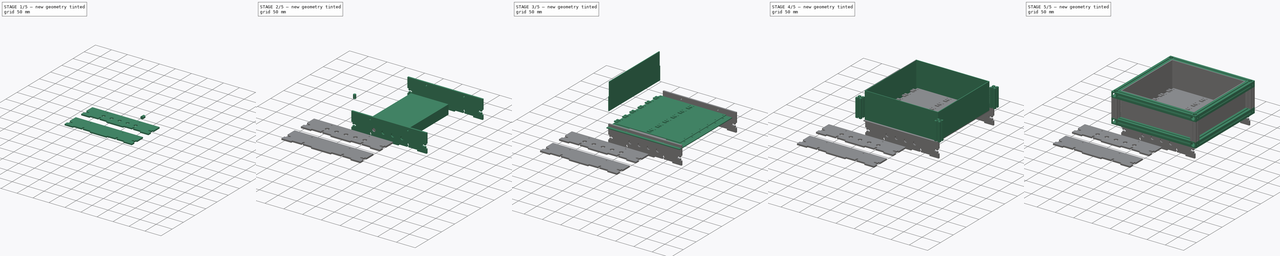
[diagram: build sequence overview — one tinted view per stage of 5, left to right]
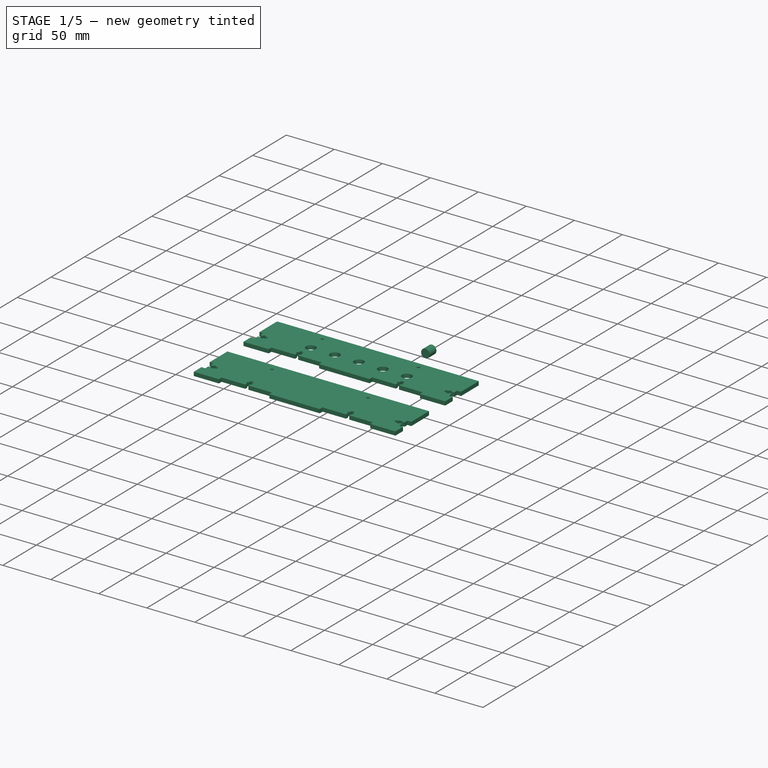
[diagram: stage 1 of 5 — iso view after this stage's code; geometry added in this stage tinted green]
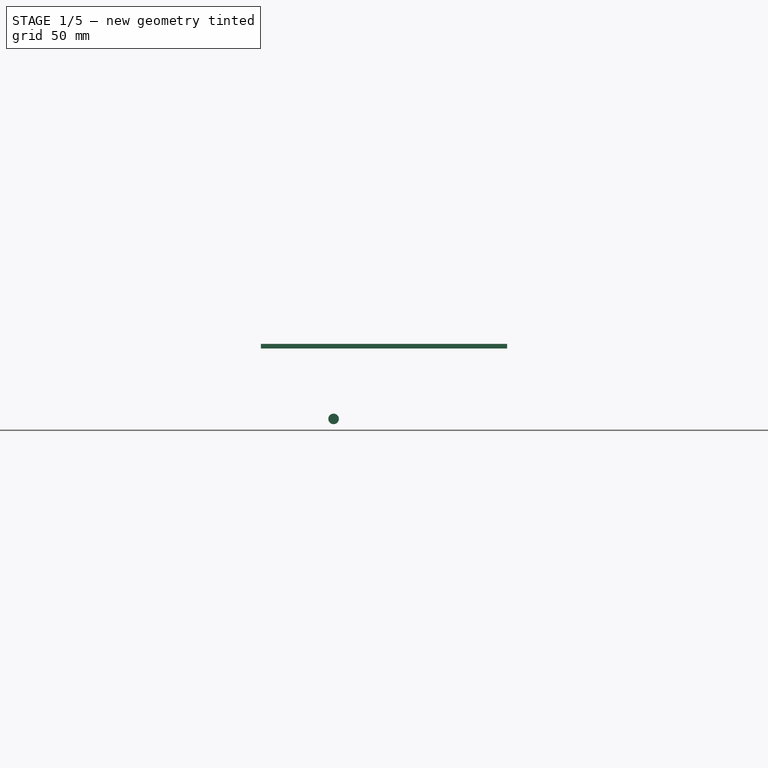
[diagram: stage 1 of 5 — front view after this stage's code; geometry added in this stage tinted green]
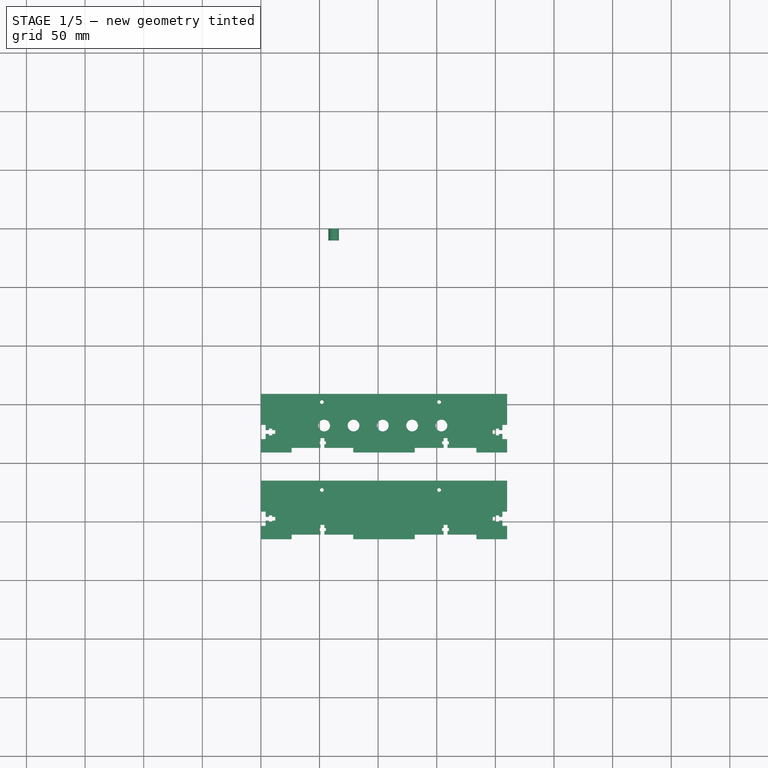
[diagram: stage 1 of 5 — top view after this stage's code; geometry added in this stage tinted green]
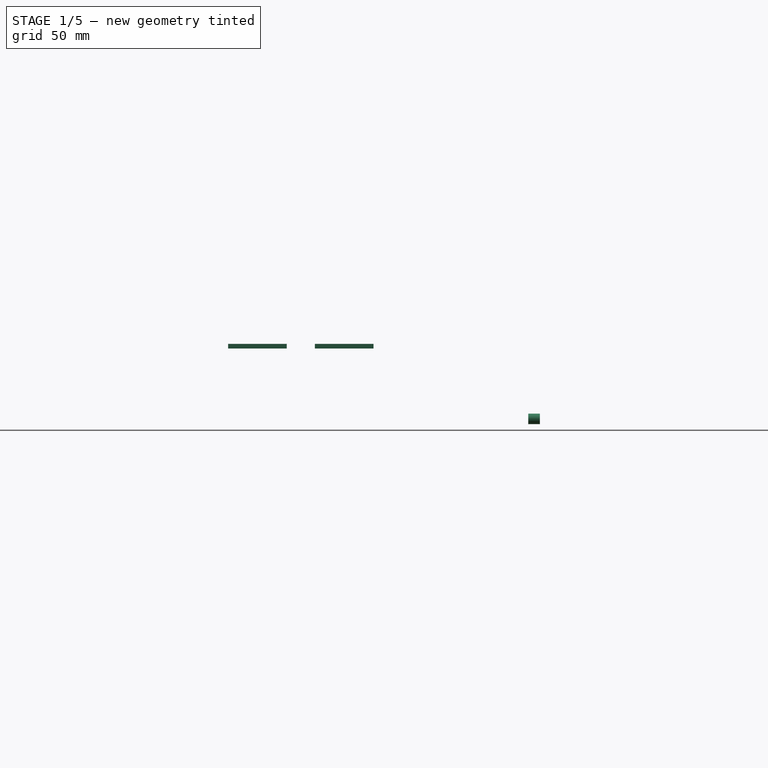
[diagram: stage 1 of 5 — right view after this stage's code; geometry added in this stage tinted green]
FCSTD DOCUMENT  (FreeCAD 0.21R33771 (Git))
Label: StimulatorHousing
License: All rights reserved
LicenseURL: https://en.wikipedia.org/wiki/All_rights_reserved
objects: Part::FeaturePython×28, Part::Feature×17, Part::Cut×16, Part::Box×11, Part::Cylinder×10, App::Part×10, Part::Extrusion×4, Part::MultiFuse×4, Sketcher::SketchObject×3, PartDesign::Pad×3, PartDesign::Mirrored×3, PartDesign::Body×3
note: 81 computed .brp shape members not serialized (recipe doc carries the construction recipe); baked Part::Feature solids carry a one-line shape summary decoded from their .brp

FEATURE [Part::Cylinder] Cylinder007  label="Cylinder011"
  Angle = 360
  AttacherType = Attacher::AttachEngine3D
  FirstAngle = 0
  Height = 10
  Placement = pos=(62,1.3e-14,-60) rot=(1,0,0;1.5708rad)
  Radius = 4.5
  SecondAngle = 0
FEATURE [Part::Feature] front_outsideCutPath001
  shape: bbox 210 x 35 x 2e-07 mm, 0 faces, 0 solids (baked)
FEATURE [Part::Feature] left_outsideCutPath
  shape: bbox 230 x 35 x 2e-07 mm, 0 faces, 0 solids (baked)
FEATURE [Part::Feature] back_outsideCutPath001
  shape: bbox 210 x 35 x 2e-07 mm, 0 faces, 0 solids (baked)
FEATURE [Part::Feature] right_outsideCutPath
  shape: bbox 230 x 35 x 2e-07 mm, 0 faces, 0 solids (baked)
FEATURE [Part::Feature] bottom_outsideCutPath
  shape: bbox 210 x 230 x 2e-07 mm, 0 faces, 0 solids (baked)
FEATURE [Part::Extrusion] Extrude
  Base = -> front_outsideCutPath001
  Dir = (0,0,1)
  DirMode = 2
  FaceMakerClass = Part::FaceMakerBullseye
  LengthFwd = 4
  LengthRev = 0
  Placement = pos=(0,-36,0) rot=(0,0,1;0rad)
  Solid = true
  Symmetric = false
FEATURE [Part::Extrusion] Extrude005
  Base = -> back_outsideCutPath001
  Dir = (0,0,1)
  DirMode = 2
  FaceMakerClass = Part::FaceMakerBullseye
  LengthFwd = 4
  LengthRev = 0
  Solid = true
  Symmetric = false
FEATURE [Part::Box] Box012  label="Cube011"
  AttacherType = Attacher::AttachEngine3D
  Height = 4
  Length = 210
  Placement = pos=(0,-231,0) rot=(0,0,1;0rad)
  Width = 15
FEATURE [Part::Box] Box013  label="Cube012"
  AttacherType = Attacher::AttachEngine3D
  Height = 4
  Length = 210
  Placement = pos=(0,-157,0) rot=(0,0,1;0rad)
  Width = 15
FEATURE [Part::MultiFuse] Fusion002
  Shapes = -> [Extrude,Box012]
FEATURE [Part::MultiFuse] Fusion003
  Shapes = -> [Extrude005,Box013]
FEATURE [Part::Cylinder] Cylinder008  label="Cylinder012"
  Angle = 360
  AttacherType = Attacher::AttachEngine3D
  FirstAngle = 0
  Height = 10
  Placement = pos=(54,-169,0) rot=(0,0,1;0rad)
  Radius = 5
  SecondAngle = 0
FEATURE [Part::FeaturePython] Array025  # Draft array (typed FeaturePython)
  AlwaysSyncPlacement = false
  Angle = 360
  ArrayType = 0
  Axis = (0,0,1)
  Base = -> Cylinder008
  Center = (0,0,0)
  Count = 5
  ExpandArray = false
  Fuse = false
  IntervalAxis = (0,0,0)
  IntervalX = (25,0,0)
  IntervalY = (0,100,0)
  IntervalZ = (0,0,100)
  NumberCircles = 3
  NumberPolar = 5
  NumberX = 5
  NumberY = 1
  NumberZ = 1
  PlacementList = 5 placements: arithmetic series from (54,-169,0) step (25,0,0) to (154,-169,0)
  RadialDistance = 50
  ScaleList = (5) [(1,1,1),(1,1,1),(1,1,1),(1,1,1),(1,1,1)]
  Symmetry = 1
  TangentialDistance = 25
FEATURE [Part::Cut] Cut016
  Base = -> Fusion003
  Tool = -> Array025
FEATURE [Part::Cylinder] Cylinder009
  Angle = 360
  AttacherType = Attacher::AttachEngine3D
  FirstAngle = 0
  Height = 10
  Placement = pos=(52,-149,0) rot=(0,0,1;0rad)
  Radius = 1.6
  SecondAngle = 0
FEATURE [Part::FeaturePython] Array026  # Draft array (typed FeaturePython)
  AlwaysSyncPlacement = false
  Angle = 360
  ArrayType = 0
  Axis = (0,0,1)
  Base = -> Cylinder009
  Center = (0,0,0)
  Count = 2
  ExpandArray = false
  Fuse = false
  IntervalAxis = (0,0,0)
  IntervalX = (100,0,0)
  IntervalY = (0,100,0)
  IntervalZ = (0,0,100)
  NumberCircles = 3
  NumberPolar = 5
  NumberX = 2
  NumberY = 1
  NumberZ = 1
  PlacementList = 2 placements: [(52,-149,0),(152,-149,0)]
  RadialDistance = 50
  ScaleList = (2) [(1,1,1),(1,1,1)]
  Symmetry = 1
  TangentialDistance = 25
FEATURE [Part::Cylinder] Cylinder010  label="Cylinder013"
  Angle = 360
  AttacherType = Attacher::AttachEngine3D
  FirstAngle = 0
  Height = 10
  Placement = pos=(52,-149,0) rot=(0,0,1;0rad)
  Radius = 1.6
  SecondAngle = 0
FEATURE [Part::FeaturePython] Array027  # Draft array (typed FeaturePython)
  AlwaysSyncPlacement = false
  Angle = 360
  ArrayType = 0
  Axis = (0,0,1)
  Base = -> Cylinder010
  Center = (0,0,0)
  Count = 2
  ExpandArray = false
  Fuse = false
  IntervalAxis = (0,0,0)
  IntervalX = (100,0,0)
  IntervalY = (0,100,0)
  IntervalZ = (0,0,100)
  NumberCircles = 3
  NumberPolar = 5
  NumberX = 2
  NumberY = 1
  NumberZ = 1
  Placement = pos=(0,-75,0) rot=(0,0,1;0rad)
  PlacementList = 2 placements: [(52,-149,0),(152,-149,0)]
  RadialDistance = 50
  ScaleList = (2) [(1,1,1),(1,1,1)]
  Symmetry = 1
  TangentialDistance = 25
FEATURE [Part::Cut] Cut017
  Base = -> Fusion002
  Tool = -> Array027
FEATURE [Part::Cut] Cut018
  Base = -> Cut016
  Tool = -> Array026
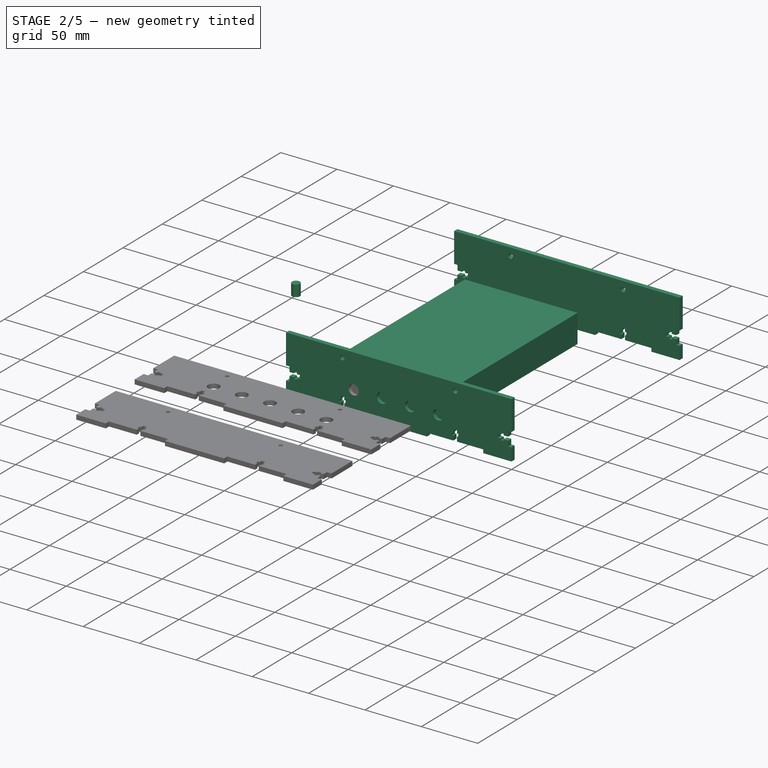
[diagram: stage 2 of 5 — iso view after this stage's code; geometry added in this stage tinted green]
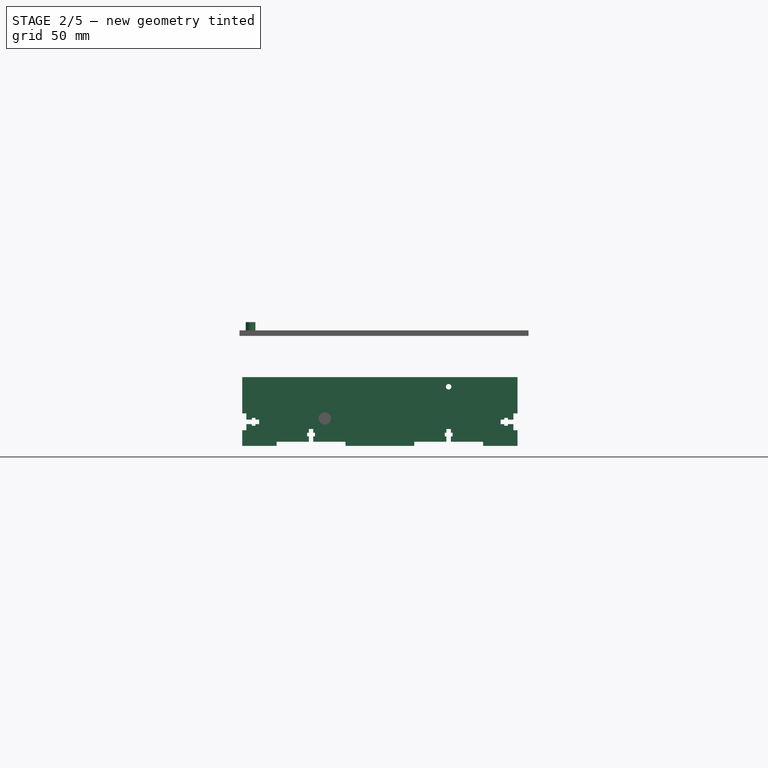
[diagram: stage 2 of 5 — front view after this stage's code; geometry added in this stage tinted green]
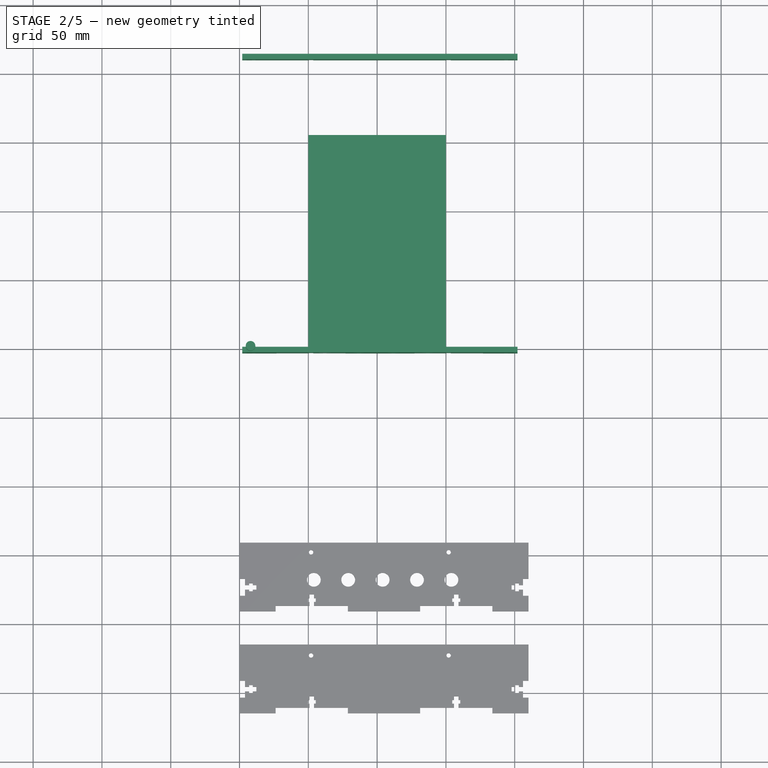
[diagram: stage 2 of 5 — top view after this stage's code; geometry added in this stage tinted green]
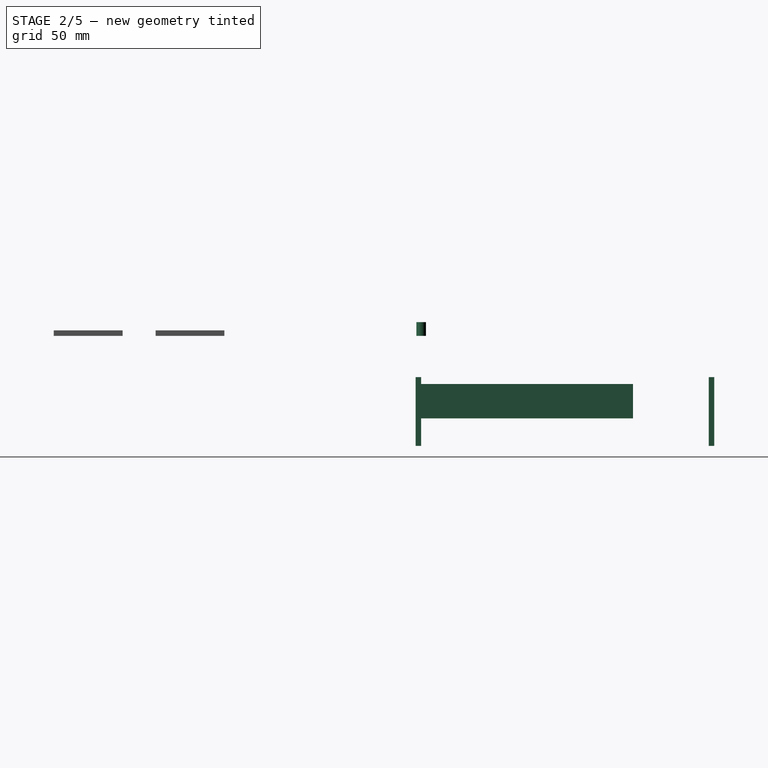
[diagram: stage 2 of 5 — right view after this stage's code; geometry added in this stage tinted green]
FEATURE [Part::Cylinder] Cylinder003  label="Cylinder007"
  Angle = 360
  AttacherType = Attacher::AttachEngine3D
  FirstAngle = 0
  Height = 10
  Placement = pos=(8,1,0) rot=(0,0,1;0rad)
  Radius = 3.5
  SecondAngle = 0
FEATURE [Part::Box] Box009  label="Electronics"
  AttacherType = Attacher::AttachEngine3D
  Height = 25
  Length = 100
  Placement = pos=(50,0,-60) rot=(0,0,1;0rad)
  Width = 155
FEATURE [Part::Feature] front_outsideCutPath
  shape: bbox 200 x 35 x 2e-07 mm, 0 faces, 0 solids (baked)
FEATURE [Part::Feature] back_outsideCutPath
  shape: bbox 200 x 35 x 2e-07 mm, 0 faces, 0 solids (baked)
FEATURE [Part::Extrusion] Extrude001  label="E_case002"
  Base = -> back_outsideCutPath
  Dir = (0,0,1)
  DirMode = 2
  FaceMakerClass = Part::FaceMakerBullseye
  LengthFwd = 4
  LengthRev = 0
  Placement = pos=(0,71,0) rot=(0,0,1;0rad)
  Solid = true
  Symmetric = false
FEATURE [Part::Extrusion] Extrude004  label="E_case"
  Base = -> front_outsideCutPath
  Dir = (0,0,1)
  DirMode = 2
  FaceMakerClass = Part::FaceMakerBullseye
  LengthFwd = 4
  LengthRev = 0
  Solid = true
  Symmetric = false
FEATURE [Part::Box] Box010  label="Cube009"
  AttacherType = Attacher::AttachEngine3D
  Height = 4
  Length = 200
  Placement = pos=(0,-180,0) rot=(0,0,1;0rad)
  Width = 15
FEATURE [Part::MultiFuse] Fusion  label="E_case004"
  Placement = pos=(2,214,135) rot=(1,0,0;1.5708rad)
  Shapes = -> [Extrude004,Box010]
FEATURE [Part::Box] Box011  label="Cube010"
  AttacherType = Attacher::AttachEngine3D
  Height = 4
  Length = 200
  Placement = pos=(0,-71,0) rot=(0,0,1;0rad)
  Width = 15
FEATURE [Part::MultiFuse] Fusion001  label="E_case003"
  Placement = pos=(2,1,26) rot=(1,0,0;1.5708rad)
  Shapes = -> [Extrude001,Box011]
FEATURE [Part::Cylinder] Cylinder004  label="Cylinder008"
  Angle = 360
  AttacherType = Attacher::AttachEngine3D
  FirstAngle = 0
  Height = 10
  Placement = pos=(52,-7,-37) rot=(-1,0,0;1.5708rad)
  Radius = 2
  SecondAngle = 0
FEATURE [Part::Cylinder] Cylinder006  label="Cylinder010"
  Angle = 360
  AttacherType = Attacher::AttachEngine3D
  FirstAngle = 0
  Height = 10
  Placement = pos=(52,207,-37) rot=(-1,0,0;1.5708rad)
  Radius = 2
  SecondAngle = 0
FEATURE [Part::FeaturePython] Array022  # Draft array (typed FeaturePython)
  AlwaysSyncPlacement = false
  Angle = 360
  ArrayType = 0
  Axis = (0,0,1)
  Base = -> Cylinder004
  Center = (0,0,0)
  Count = 2
  ExpandArray = false
  Fuse = false
  IntervalAxis = (0,0,0)
  IntervalX = (100,0,0)
  IntervalY = (0,100,0)
  IntervalZ = (0,0,100)
  NumberCircles = 3
  NumberPolar = 5
  NumberX = 2
  NumberY = 1
  NumberZ = 1
  PlacementList = 2 placements: [(52,-7,-37),(152,-7,-37)]
  RadialDistance = 50
  ScaleList = (2) [(1,1,1),(1,1,1)]
  Symmetry = 1
  TangentialDistance = 25
FEATURE [Part::Cut] Cut013  label="E_case005"
  Base = -> Fusion001
  Tool = -> Array022
FEATURE [Part::FeaturePython] Array023  # Draft array (typed FeaturePython)
  AlwaysSyncPlacement = false
  Angle = 360
  ArrayType = 0
  Axis = (0,0,1)
  Base = -> Cylinder006
  Center = (0,0,0)
  Count = 2
  ExpandArray = false
  Fuse = false
  IntervalAxis = (0,0,0)
  IntervalX = (100,0,0)
  IntervalY = (0,100,0)
  IntervalZ = (0,0,100)
  NumberCircles = 3
  NumberPolar = 5
  NumberX = 2
  NumberY = 1
  NumberZ = 1
  PlacementList = 2 placements: [(52,207,-37),(152,207,-37)]
  RadialDistance = 50
  ScaleList = (2) [(1,1,1),(1,1,1)]
  Symmetry = 1
  TangentialDistance = 25
FEATURE [Part::Cut] Cut014  label="E_case_front"
  Base = -> Fusion
  Tool = -> Array023
FEATURE [Part::FeaturePython] Array024  # Draft array (typed FeaturePython)
  AlwaysSyncPlacement = false
  Angle = 360
  ArrayType = 0
  Axis = (0,0,1)
  Base = -> Cylinder007
  Center = (0,0,0)
  Count = 4
  ExpandArray = false
  Fuse = false
  IntervalAxis = (0,0,0)
  IntervalX = (25,0,0)
  IntervalY = (0,100,0)
  IntervalZ = (0,0,100)
  NumberCircles = 3
  NumberPolar = 5
  NumberX = 4
  NumberY = 1
  NumberZ = 1
  PlacementList = 4 placements: arithmetic series from (62,1.26565e-14,-60) step (25,0,0) to (137,1.26565e-14,-60)
  RadialDistance = 50
  ScaleList = (4) [(1,1,1),(1,1,1),(1,1,1),(1,1,1)]
  Symmetry = 1
  TangentialDistance = 25
FEATURE [Part::Cut] Cut015  label="E_case_back"
  Base = -> Cut013
  Tool = -> Array024
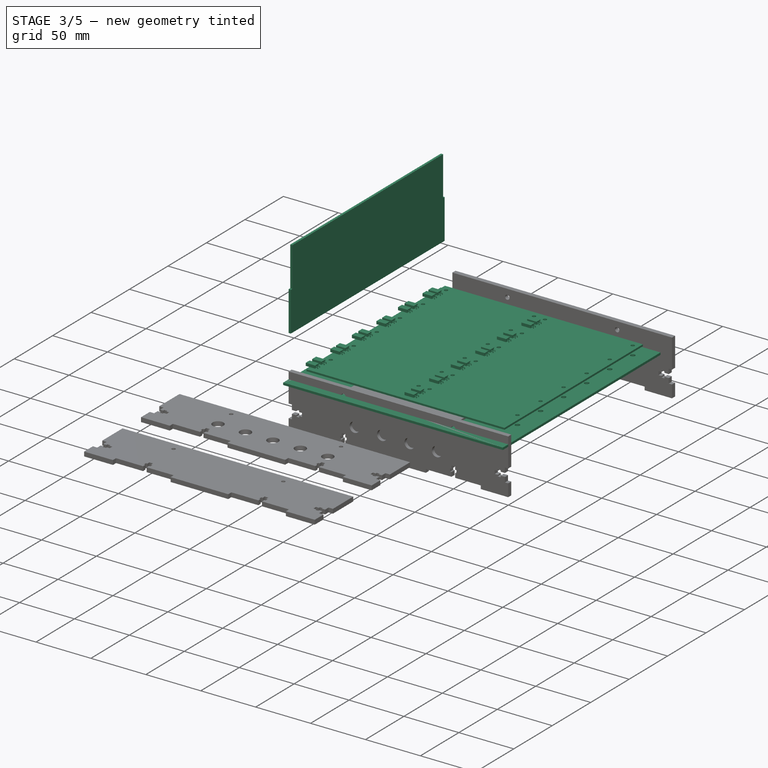
[diagram: stage 3 of 5 — iso view after this stage's code; geometry added in this stage tinted green]
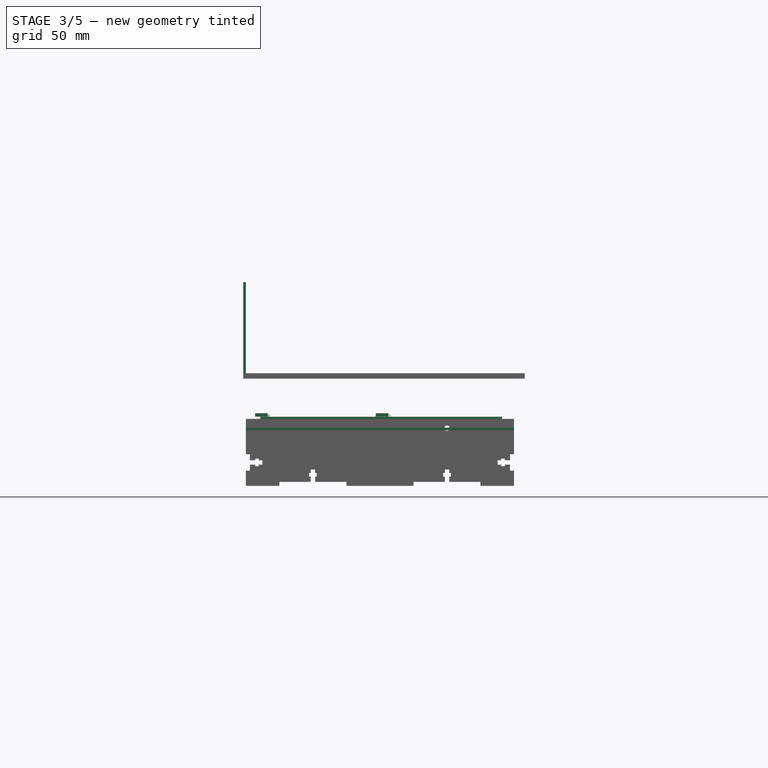
[diagram: stage 3 of 5 — front view after this stage's code; geometry added in this stage tinted green]
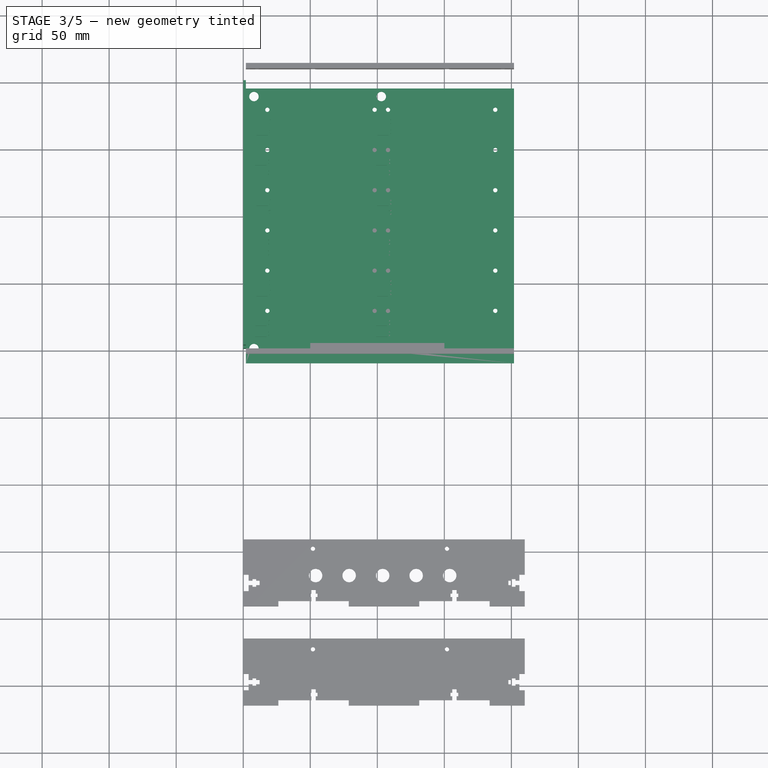
[diagram: stage 3 of 5 — top view after this stage's code; geometry added in this stage tinted green]
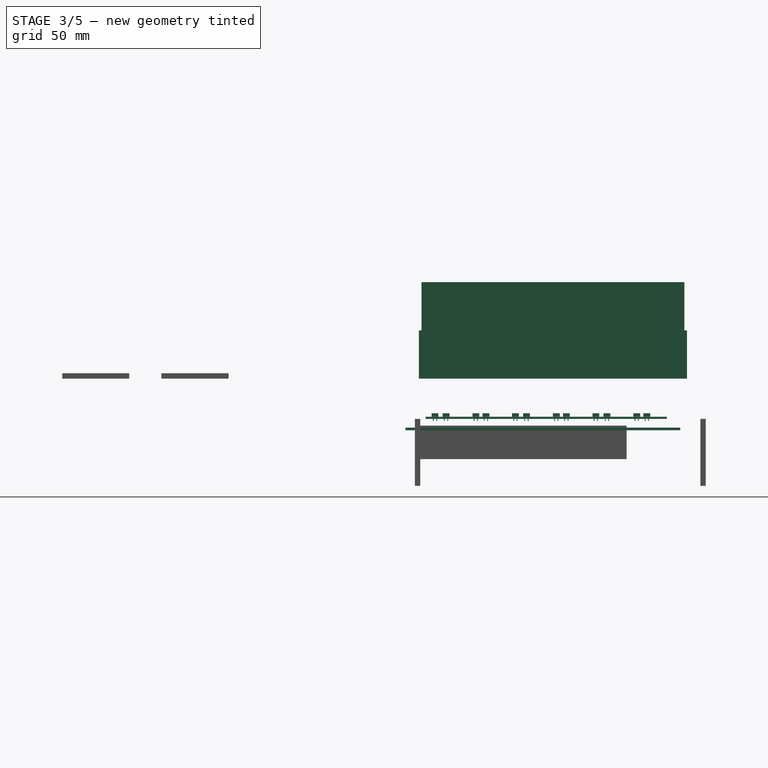
[diagram: stage 3 of 5 — right view after this stage's code; geometry added in this stage tinted green]
FEATURE [Part::Box] Box  label="Bottom_aluminium_sheet"
  AttacherType = Attacher::AttachEngine3D
  Height = 2
  Length = 200
  Placement = pos=(2,-10,-38.5) rot=(0,0,1;0rad)
  Width = 205
FEATURE [Part::Box] Box007  label="Cube007"
  AttacherType = Attacher::AttachEngine3D
  Height = 72
  Length = 2
  Width = 200
FEATURE [Part::Box] Box008  label="Cube008"
  AttacherType = Attacher::AttachEngine3D
  Height = 36
  Length = 2
  Placement = pos=(0,0,36) rot=(0,0,1;0rad)
  Width = 2
FEATURE [Part::FeaturePython] Array012  # Draft array (typed FeaturePython)
  AlwaysSyncPlacement = false
  Angle = 360
  ArrayType = 0
  Axis = (0,0,1)
  Base = -> Box008
  Center = (0,0,0)
  Count = 2
  ExpandArray = false
  Fuse = false
  IntervalAxis = (0,0,0)
  IntervalX = (100,0,0)
  IntervalY = (0,198,0)
  IntervalZ = (0,0,100)
  NumberCircles = 3
  NumberPolar = 5
  NumberX = 1
  NumberY = 2
  NumberZ = 1
  PlacementList = 2 placements: [(0,0,36),(0,198,36)]
  RadialDistance = 50
  ScaleList = (2) [(1,1,1),(1,1,1)]
  Symmetry = 1
  TangentialDistance = 25
FEATURE [Part::Cut] Cut010
  Base = -> Box007
  Tool = -> Array012
FEATURE [Part::Feature] Part__Feature  label="PinSocket_1x02_P254mm_Horizontal"
  shape: bbox 10.13 x 5.08 x 5.84 mm, 80 faces (baked)
FEATURE [App::Part] PinSocket_1x02_P2_54mm_Horizontal  label="PinSocket_1x02_P2.54mm_Horizontal"
  Group = -> [Part__Feature]
  Origin = -> Origin
  Placement = pos=(-84.1,8.3,1.65) rot=(0,0,1;0rad)
FEATURE [Part::Feature] Part__Feature001  label="PinSocket_1x02_P254mm_Horizontal001"
  shape: bbox 10.13 x 5.08 x 5.84 mm, 80 faces (baked)
FEATURE [App::Part] PinSocket_1x02_P2_54mm_Horizontal001  label="PinSocket_1x02_P2.54mm_Horizontal001"
  Group = -> [Part__Feature001]
  Origin = -> Origin055
  Placement = pos=(-83.1,38.8,1.65) rot=(0,0,1;0rad)
FEATURE [Part::Feature] Part__Feature002  label="PinSocket_1x02_P254mm_Horizontal002"
  shape: bbox 10.13 x 5.08 x 5.84 mm, 80 faces (baked)
FEATURE [App::Part] PinSocket_1x02_P2_54mm_Horizontal002  label="PinSocket_1x02_P2.54mm_Horizontal002"
  Group = -> [Part__Feature002]
  Origin = -> Origin056
  Placement = pos=(-84,16.54,1.65) rot=(0,0,1;0rad)
FEATURE [Part::Feature] Part__Feature003  label="PinSocket_1x02_P254mm_Horizontal003"
  shape: bbox 10.13 x 5.08 x 5.84 mm, 80 faces (baked)
FEATURE [App::Part] PinSocket_1x02_P2_54mm_Horizontal003  label="PinSocket_1x02_P2.54mm_Horizontal003"
  Group = -> [Part__Feature003]
  Origin = -> Origin057
  Placement = pos=(-83.1,46.3,1.65) rot=(0,0,1;0rad)
FEATURE [Part::Feature] Part__Feature004  label="green_uv_led_pcb_PCB"
  shape: bbox 90.3 x 60 x 1.6 mm, 18 faces (baked)
FEATURE [App::Part] green_uv_led_pcb_1  label="green_uv_led_pcb 1"
  Group = -> [PinSocket_1x02_P2_54mm_Horizontal,PinSocket_1x02_P2_54mm_Horizontal001,PinSocket_1x02_P2_54mm_Horizontal002,PinSocket_1x02_P2_54mm_Horizontal003,Part__Feature004]
  Origin = -> Origin058
  Placement = pos=(193,5,-30) rot=(0,0,1;0rad)
FEATURE [Part::Feature] Part__Feature005  label="PinSocket_1x02_P254mm_Horizontal004"
  shape: bbox 10.13 x 5.08 x 5.84 mm, 80 faces (baked)
FEATURE [Part::Feature] Part__Feature006  label="PinSocket_1x02_P254mm_Horizontal005"
  shape: bbox 10.13 x 5.08 x 5.84 mm, 80 faces (baked)
FEATURE [Part::Feature] Part__Feature007  label="PinSocket_1x02_P254mm_Horizontal006"
  shape: bbox 10.13 x 5.08 x 5.84 mm, 80 faces (baked)
FEATURE [Part::Feature] Part__Feature008  label="PinSocket_1x02_P254mm_Horizontal007"
  shape: bbox 10.13 x 5.08 x 5.84 mm, 80 faces (baked)
FEATURE [Part::Feature] Part__Feature009  label="green_uv_led_pcb_PCB001"
  shape: bbox 90.3 x 60 x 1.6 mm, 18 faces (baked)
FEATURE [App::Part] PinSocket_1x02_P2_54mm_Horizontal004  label="PinSocket_1x02_P2.54mm_Horizontal004"
  Group = -> [Part__Feature005]
  Origin = -> Origin059
  Placement = pos=(-84.1,8.3,1.65) rot=(0,0,1;0rad)
FEATURE [App::Part] PinSocket_1x02_P2_54mm_Horizontal005  label="PinSocket_1x02_P2.54mm_Horizontal005"
  Group = -> [Part__Feature006]
  Origin = -> Origin060
  Placement = pos=(-83.1,38.8,1.65) rot=(0,0,1;0rad)
FEATURE [App::Part] PinSocket_1x02_P2_54mm_Horizontal006  label="PinSocket_1x02_P2.54mm_Horizontal006"
  Group = -> [Part__Feature007]
  Origin = -> Origin061
  Placement = pos=(-84,16.54,1.65) rot=(0,0,1;0rad)
FEATURE [App::Part] PinSocket_1x02_P2_54mm_Horizontal007  label="PinSocket_1x02_P2.54mm_Horizontal007"
  Group = -> [Part__Feature008]
  Origin = -> Origin062
  Placement = pos=(-83.1,46.3,1.65) rot=(0,0,1;0rad)
FEATURE [App::Part] green_uv_led_pcb_002  label="green_uv_led_pcb 002"
  Group = -> [PinSocket_1x02_P2_54mm_Horizontal004,PinSocket_1x02_P2_54mm_Horizontal005,PinSocket_1x02_P2_54mm_Horizontal006,PinSocket_1x02_P2_54mm_Horizontal007,Part__Feature009]
  Origin = -> Origin063
  Placement = pos=(103,5,-30) rot=(0,0,1;0rad)
FEATURE [Part::FeaturePython] Array014  label="LED_panel"  # Draft array (typed FeaturePython)
  AlwaysSyncPlacement = false
  Angle = 360
  ArrayType = 0
  Axis = (0,0,1)
  Base = -> green_uv_led_pcb_1
  Center = (0,0,0)
  Count = 3
  ExpandArray = false
  Fuse = false
  IntervalAxis = (0,0,0)
  IntervalX = (100,0,0)
  IntervalY = (0,60,0)
  IntervalZ = (0,0,100)
  NumberCircles = 3
  NumberPolar = 5
  NumberX = 1
  NumberY = 3
  NumberZ = 1
  PlacementList = 3 placements: arithmetic series from (193,5,-30) step (0,60,0) to (193,125,-30)
  RadialDistance = 50
  ScaleList = (3) [(1,1,1),(1,1,1),(1,1,1)]
  Symmetry = 1
  TangentialDistance = 25
FEATURE [Part::FeaturePython] Array015  label="LED_panels"  # Draft array (typed FeaturePython)
  AlwaysSyncPlacement = false
  Angle = 360
  ArrayType = 0
  Axis = (0,0,1)
  Base = -> green_uv_led_pcb_002
  Center = (0,0,0)
  Count = 3
  ExpandArray = false
  Fuse = false
  IntervalAxis = (0,0,0)
  IntervalX = (100,0,0)
  IntervalY = (0,60,0)
  IntervalZ = (0,0,100)
  NumberCircles = 3
  NumberPolar = 5
  NumberX = 1
  NumberY = 3
  NumberZ = 1
  PlacementList = 3 placements: arithmetic series from (103,5,-30) step (0,60,0) to (103,125,-30)
  RadialDistance = 50
  ScaleList = (3) [(1,1,1),(1,1,1),(1,1,1)]
  Symmetry = 1
  TangentialDistance = 25
FEATURE [Part::Cylinder] Cylinder
  Angle = 360
  AttacherType = Attacher::AttachEngine3D
  FirstAngle = 0
  Height = 5
  Placement = pos=(18,29,0) rot=(0,0,1;0rad)
  Radius = 2
  SecondAngle = 0
FEATURE [Part::FeaturePython] Array016  label="Panels_hole"  # Draft array (typed FeaturePython)
  AlwaysSyncPlacement = false
  Angle = 360
  ArrayType = 0
  Axis = (0,0,1)
  Base = -> Cylinder
  Center = (0,0,0)
  Count = 4
  ExpandArray = false
  Fuse = false
  IntervalAxis = (0,0,0)
  IntervalX = (80,0,0)
  IntervalY = (0,30,0)
  IntervalZ = (0,0,100)
  NumberCircles = 3
  NumberPolar = 5
  NumberX = 2
  NumberY = 2
  NumberZ = 1
  PlacementList = 4 placements: [(18,29,0),(18,59,0),(98,29,0),(98,59,0)]
  RadialDistance = 50
  ScaleList = (4) [(1,1,1),(1,1,1),(1,1,1),(1,1,1)]
  Symmetry = 1
  TangentialDistance = 25
FEATURE [Part::FeaturePython] Array018  # Draft array (typed FeaturePython)
  AlwaysSyncPlacement = false
  Angle = 360
  ArrayType = 0
  Axis = (0,0,1)
  Base = -> Array016
  Center = (0,0,0)
  Count = 3
  ExpandArray = false
  Fuse = false
  IntervalAxis = (0,0,0)
  IntervalX = (100,0,0)
  IntervalY = (0,60,0)
  IntervalZ = (0,0,100)
  NumberCircles = 3
  NumberPolar = 5
  NumberX = 1
  NumberY = 3
  NumberZ = 1
  PlacementList = 3 placements: arithmetic series from (0,0,0) step (0,60,0) to (0,120,0)
  RadialDistance = 50
  ScaleList = (3) [(1,1,1),(1,1,1),(1,1,1)]
  Symmetry = 1
  TangentialDistance = 25
FEATURE [Part::FeaturePython] Array019  # Draft array (typed FeaturePython)
  AlwaysSyncPlacement = false
  Angle = 360
  ArrayType = 0
  Axis = (0,0,1)
  Base = -> Array018
  Center = (0,0,0)
  Count = 2
  ExpandArray = false
  Fuse = false
  IntervalAxis = (0,0,0)
  IntervalX = (90,0,0)
  IntervalY = (0,100,0)
  IntervalZ = (0,0,100)
  NumberCircles = 3
  NumberPolar = 5
  NumberX = 2
  NumberY = 1
  NumberZ = 1
  Placement = pos=(0,0,-40) rot=(0,0,1;0rad)
  PlacementList = 2 placements: [(0,0,0),(90,0,0)]
  RadialDistance = 50
  ScaleList = (2) [(1,1,1),(1,1,1)]
  Symmetry = 1
  TangentialDistance = 25
FEATURE [Part::Cut] Cut011  label="Panel_mounting"
  Base = -> Box
  Tool = -> Array019
FEATURE [Part::FeaturePython] Array020  # Draft array (typed FeaturePython)
  AlwaysSyncPlacement = false
  Angle = 360
  ArrayType = 0
  Axis = (0,0,1)
  Base = -> Cylinder003
  Center = (0,0,0)
  Count = 2
  ExpandArray = false
  Fuse = false
  IntervalAxis = (0,0,0)
  IntervalX = (95,0,0)
  IntervalY = (0,100,0)
  IntervalZ = (0,0,100)
  NumberCircles = 3
  NumberPolar = 5
  NumberX = 2
  NumberY = 1
  NumberZ = 1
  PlacementList = 2 placements: [(8,1,0),(103,1,0)]
  RadialDistance = 50
  ScaleList = (2) [(1,1,1),(1,1,1)]
  Symmetry = 1
  TangentialDistance = 25
FEATURE [Part::FeaturePython] Array021  # Draft array (typed FeaturePython)
  AlwaysSyncPlacement = false
  Angle = 360
  ArrayType = 0
  Axis = (0,0,1)
  Base = -> Array020
  Center = (0,0,0)
  Count = 2
  ExpandArray = false
  Fuse = false
  IntervalAxis = (0,0,0)
  IntervalX = (300,0,0)
  IntervalY = (0,188,0)
  IntervalZ = (0,0,100)
  NumberCircles = 3
  NumberPolar = 5
  NumberX = 1
  NumberY = 2
  NumberZ = 1
  Placement = pos=(0,0,-40) rot=(0,0,1;0rad)
  PlacementList = 2 placements: [(0,0,0),(0,188,0)]
  RadialDistance = 50
  ScaleList = (2) [(1,1,1),(1,1,1)]
  Symmetry = 1
  TangentialDistance = 25
FEATURE [Part::Cut] Cut012  label="Bottom+holes"
  Base = -> Cut011
  Tool = -> Array021
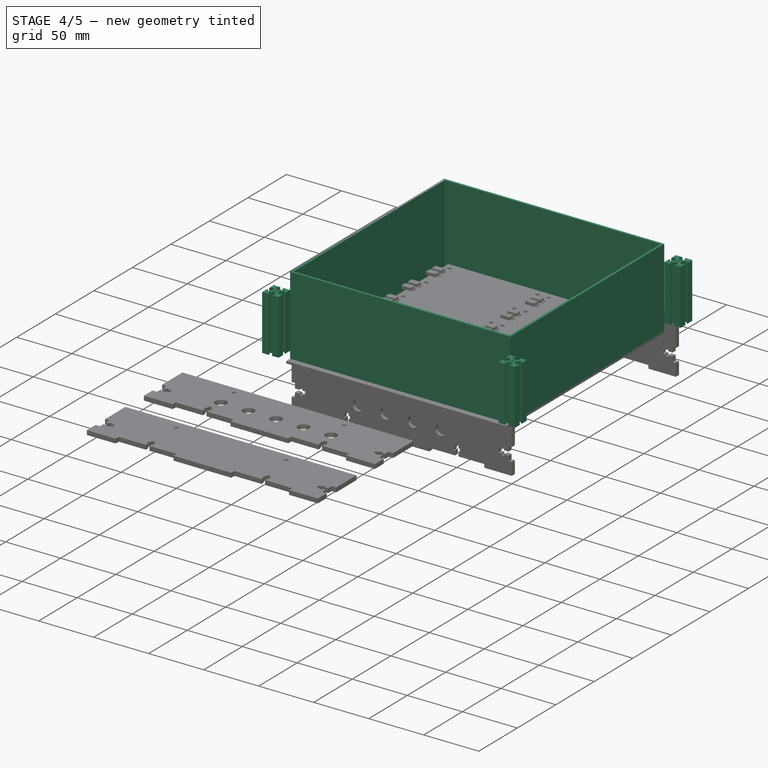
[diagram: stage 4 of 5 — iso view after this stage's code; geometry added in this stage tinted green]
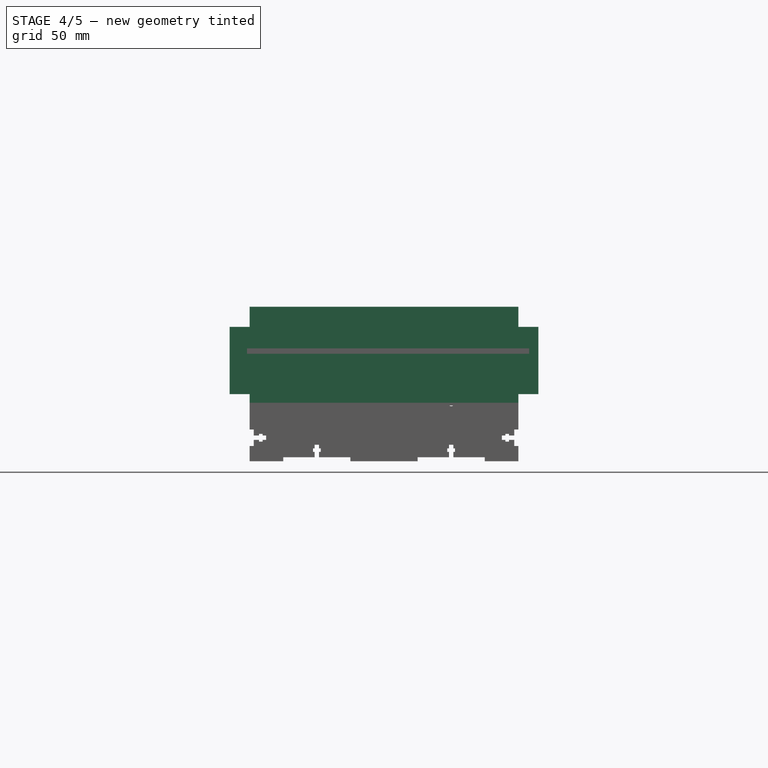
[diagram: stage 4 of 5 — front view after this stage's code; geometry added in this stage tinted green]
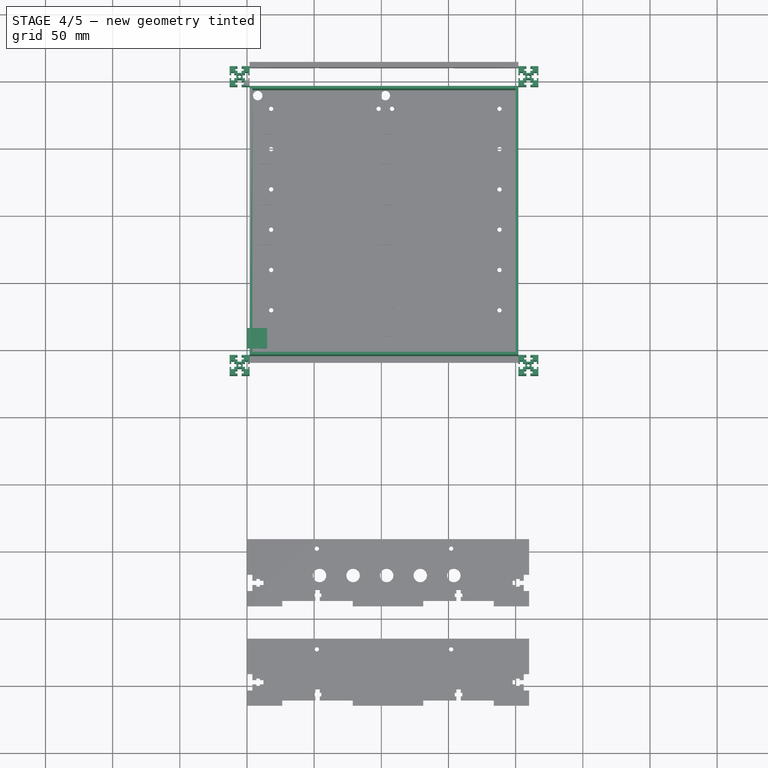
[diagram: stage 4 of 5 — top view after this stage's code; geometry added in this stage tinted green]
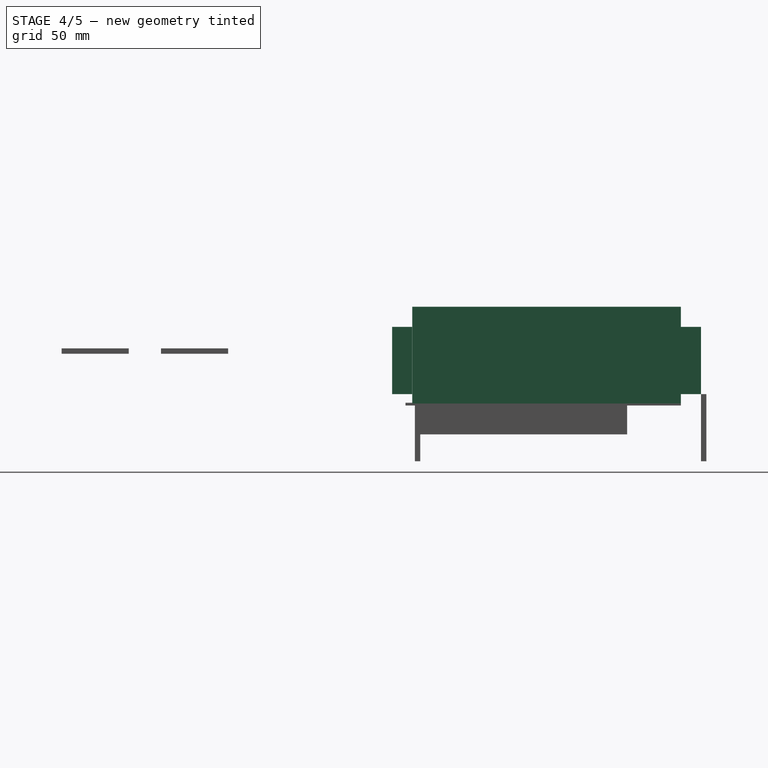
[diagram: stage 4 of 5 — right view after this stage's code; geometry added in this stage tinted green]
FEATURE [Part::Box] Box004  label="Cube005"
  AttacherType = Attacher::AttachEngine3D
  Height = 15
  Length = 15
  Width = 15
FEATURE [Part::Cylinder] Cylinder001  label="Cylinder006"
  Angle = 360
  AttacherType = Attacher::AttachEngine3D
  FirstAngle = 0
  Height = 12
  Placement = pos=(7.5,12,7.5) rot=(1,0,0;1.5708rad)
  Radius = 5
  SecondAngle = 0
FEATURE [Part::FeaturePython] Clone001  label="Cylinder001"  # Draft clone (typed FeaturePython)
  AttacherType = Attacher::AttachEngine3D
  Fuse = false
  Objects = -> [Cylinder001]
  Placement = pos=(0,7.5,7.5) rot=(0,1,0;1.5708rad)
  Scale = (1,1,1)
FEATURE [Part::FeaturePython] Clone002  label="Cylinder002"  # Draft clone (typed FeaturePython)
  AttacherType = Attacher::AttachEngine3D
  Fuse = false
  Objects = -> [Clone001]
  Placement = pos=(7.5,7.5,0) rot=(0,0,1;1.5708rad)
  Scale = (1,1,1)
FEATURE [Part::Cut] Cut004
  Base = -> Box004
  Tool = -> Cylinder001
FEATURE [Part::Cut] Cut005
  Base = -> Cut004
  Tool = -> Clone002
FEATURE [Part::Cylinder] Cylinder002  label="Cylinder003"
  Angle = 360
  AttacherType = Attacher::AttachEngine3D
  FirstAngle = 0
  Height = 3
  Placement = pos=(7.5,7.5,12) rot=(0,0,1;0rad)
  Radius = 1.5
  SecondAngle = 0
FEATURE [Sketcher::SketchObject] Sketch002
  FullyConstrained = true
  MapMode = 5
  Placement = pos=(0,0,0) rot=(1,0,0;1.5708rad)
  Support = -> [XZ_Plane054]
  sketch-geometry (30):
    g0: LineSegment StartX=-7.465 StartY=-7.465 StartZ=0 EndX=-7.465 EndY=-1.515 EndZ=0
    g1: LineSegment StartX=-7.465 StartY=-1.515 StartZ=0 EndX=-6.305 EndY=-1.515 EndZ=0
    g2: LineSegment StartX=-6.305 StartY=-1.515 StartZ=0 EndX=-6.305 EndY=-3.135 EndZ=0
    g3: LineSegment StartX=-6.305 StartY=-3.135 StartZ=0 EndX=-4.005 EndY=-3.135 EndZ=0
    g4: LineSegment StartX=-4.005 StartY=-1.515 StartZ=0 EndX=-2.385 EndY=-1.515 EndZ=0
    g5: LineSegment StartX=-2.385 StartY=-1.515 StartZ=0 EndX=-2.385 EndY=1.515 EndZ=0
    g6: LineSegment StartX=-4.005 StartY=1.515 StartZ=0 EndX=-4.005 EndY=3.135 EndZ=0
    g7: LineSegment StartX=-4.005 StartY=3.135 StartZ=0 EndX=-6.305 EndY=3.135 EndZ=0
    g8: LineSegment StartX=-6.305 StartY=3.135 StartZ=0 EndX=-6.305 EndY=1.515 EndZ=0
    g9: LineSegment StartX=-6.305 StartY=1.515 StartZ=0 EndX=-7.465 EndY=1.515 EndZ=0
    g10: LineSegment StartX=-7.465 StartY=1.515 StartZ=0 EndX=-7.465 EndY=7.465 EndZ=0
    g11: LineSegment StartX=-7.465 StartY=7.465 StartZ=0 EndX=-1.515 EndY=7.465 EndZ=0
    g12: LineSegment StartX=-7.465 StartY=-7.465 StartZ=0 EndX=-1.515 EndY=-7.465 EndZ=0
    g13: LineSegment StartX=-4.005 StartY=-3.135 StartZ=0 EndX=-4.005 EndY=-1.515 EndZ=0
    g14: LineSegment StartX=-2.385 StartY=1.515 StartZ=0 EndX=-4.005 EndY=1.515 EndZ=0
    g15: LineSegment StartX=-1.515 StartY=-7.465 StartZ=0 EndX=-1.515 EndY=-6.305 EndZ=0
    g16: LineSegment StartX=-1.515 StartY=-6.305 StartZ=0 EndX=-3.135 EndY=-6.305 EndZ=0
    g17: LineSegment StartX=-3.135 StartY=-6.305 StartZ=0 EndX=-3.135 EndY=-4.005 EndZ=0
    g18: LineSegment StartX=-3.135 StartY=-4.005 StartZ=0 EndX=-1.515 EndY=-4.005 EndZ=0
    g19: LineSegment StartX=-1.515 StartY=-4.005 StartZ=0 EndX=-1.515 EndY=-2.385 EndZ=0
    g20: LineSegment StartX=-1.515 StartY=-2.385 StartZ=0 EndX=0 EndY=-2.385 EndZ=0
    g21: LineSegment StartX=-1.515 StartY=7.465 StartZ=0 EndX=-1.515 EndY=6.305 EndZ=0
    g22: LineSegment StartX=-1.515 StartY=6.305 StartZ=0 EndX=-3.135 EndY=6.305 EndZ=0
    g23: LineSegment StartX=-3.135 StartY=4.005 StartZ=0 EndX=-1.515 EndY=4.005 EndZ=0
    g24: LineSegment StartX=-1.515 StartY=4.005 StartZ=0 EndX=-1.515 EndY=2.385 EndZ=0
    g25: LineSegment StartX=-1.515 StartY=2.385 StartZ=0 EndX=0 EndY=2.385 EndZ=0
    g26: LineSegment StartX=-3.135 StartY=4.005 StartZ=0 EndX=-3.135 EndY=6.305 EndZ=0
    g27: ArcOfCircle CenterX=0 CenterY=0 CenterZ=0 NormalX=0 NormalY=0 NormalZ=1 AngleXU=0 Radius=1.3 StartAngle=1.5708 EndAngle=4.71239
    g28: LineSegment StartX=1e-16 StartY=2.385 StartZ=0 EndX=1e-16 EndY=1.3 EndZ=0
    g29: LineSegment StartX=0 StartY=-2.385 StartZ=0 EndX=1e-16 EndY=-1.3 EndZ=0
  constraints (88):
    c: Coincident(g1,g0)
    c: Coincident(g2,g1)
    c: Vertical(g2)
    c: Coincident(g3,g2)
    c: Horizontal(g4)
    c: Coincident(g5,g4)
    c: Vertical(g6)
    c: Horizontal(g7)
    c: Coincident(g8,g7)
    c: Vertical(g8)
    c: Coincident(g11,g10)
    c: Horizontal(g11)
    c: Coincident(g12,g0)
    c: Horizontal(g12)
    c: Horizontal(g3)
    c: Vertical(g0)
    c: Horizontal(g1)
    c: Vertical(g5)
    c: Vertical(g10)
    c: Horizontal(g9)
    c: DistanceX(g12,g12) = 5.95
    c: Equal(g12,g0)
    c: Equal(g0,g10)
    c: Equal(g10,g11)
    c: Coincident(g9,g10)
    c: Coincident(g6,g7)
    c: Coincident(g9,g8)
    c: Vertical(g8,g1)
    c: Symmetric(g0,g9,g-1)
    c: DistanceY(g0,g9) = 3.03
    c: Horizontal(g1,g4)
    c: DistanceX(g1,g1) = 1.16
    c: DistanceY(g2,g2) = 1.62
    c: Coincident(g13,g3)
    c: Vertical(g13)
    c: Coincident(g4,g13)
    c: Equal(g4,g13)
    c: Coincident(g14,g5)
    c: Horizontal(g14)
    c: Coincident(g14,g6)
    c: Vertical(g6,g4)
    c: Equal(g6,g8)
    c: Equal(g8,g13)
    c: Coincident(g15,g12)
    c: Vertical(g15)
    c: Coincident(g16,g15)
    c: Horizontal(g16)
    c: Vertical(g17)
    c: Horizontal(g18)
    c: Vertical(g19)
    c: Horizontal(g20)
    c: Coincident(g21,g11)
    c: Vertical(g21)
    c: Horizontal(g23)
    c: Vertical(g24)
    c: Horizontal(g25)
    c: Symmetric(g20,g25,g-1)
    c: Vertical(g25,g-1)
    c: DistanceX(g20,g20) = 1.515
    c: Coincident(g19,g20)
    c: Coincident(g18,g19)
    c: Equal(g25,g20)
    c: Coincident(g24,g25)
    c: Coincident(g23,g24)
    c: Equal(g1,g15)
    c: Equal(g15,g21)
    c: Coincident(g16,g17)
    c: Coincident(g18,g17)
    c: Equal(g16,g2)
    c: Equal(g16,g18)
    c: Equal(g23,g18)
    c: Equal(g22,g23)
    c: Coincident(g22,g21)
    c: Horizontal(g22)
    c: Coincident(g26,g23)
    c: DistanceX(g7,g7) = 2.3
    c: Equal(g17,g3)
    c: Equal(g19,g13)
    c: Equal(g24,g6)
    c: Coincident(g26,g22)
    c: Coincident(g27,g-1)
    c: Vertical(g27,g27)
    c: Radius(g27) = 1.3
    c: Coincident(g28,g25)
    c: Coincident(g28,g27)
    c: Vertical(g28)
    c: Coincident(g29,g20)
    c: Coincident(g29,g27)
FEATURE [PartDesign::Pad] Pad
  Direction = (0,-1,-2e-16)
  Length = 50
  Length2 = 10
  Placement = pos=(0,0,0) rot=(1,0,0;1.5708rad)
  Profile = -> Sketch002
  ReferenceAxis = -> Sketch002 [N_Axis]
  Type = 0
FEATURE [PartDesign::Mirrored] Mirrored
  BaseFeature = -> Pad
  MirrorPlane = -> Sketch002 [V_Axis]
  Originals = -> [Pad]
  Placement = pos=(0,0,0) rot=(1,0,0;1.5708rad)
FEATURE [PartDesign::Body] Body001  label="150mm_profile"
  Group = -> [Sketch002,Pad,Mirrored]
  Origin = -> Origin054
  Placement = pos=(-5.5,-12.5,-30) rot=(-1,0,0;1.5708rad)
  Tip = -> Mirrored
FEATURE [Part::FeaturePython] Array004  label="150mm_profile_sides"  # Draft array (typed FeaturePython)
  AlwaysSyncPlacement = false
  Angle = 360
  ArrayType = 0
  Axis = (0,0,1)
  Base = -> Body001
  Center = (0,0,0)
  Count = 4
  ExpandArray = false
  Fuse = false
  IntervalAxis = (0,0,0)
  IntervalX = (215,0,0)
  IntervalY = (0,215,0)
  IntervalZ = (0,0,100)
  NumberCircles = 3
  NumberPolar = 5
  NumberX = 2
  NumberY = 2
  NumberZ = 1
  PlacementList = 4 placements: [(-5.5,-12.5,-30),(-5.5,202.5,-30),(209.5,-12.5,-30),(209.5,202.5,-30)]
  RadialDistance = 50
  ScaleList = (4) [(1,1,1),(1,1,1),(1,1,1),(1,1,1)]
  Symmetry = 1
  TangentialDistance = 25
FEATURE [Part::Box] Box005  label="Cube"
  AttacherType = Attacher::AttachEngine3D
  Height = 72
  Length = 200
  Width = 2
FEATURE [Part::Box] Box006  label="Cube006"
  AttacherType = Attacher::AttachEngine3D
  Height = 36
  Length = 2
  Width = 2
FEATURE [Part::FeaturePython] Array010  # Draft array (typed FeaturePython)
  AlwaysSyncPlacement = false
  Angle = 360
  ArrayType = 0
  Axis = (0,0,1)
  Base = -> Box006
  Center = (0,0,0)
  Count = 2
  ExpandArray = false
  Fuse = false
  IntervalAxis = (0,0,0)
  IntervalX = (198,0,0)
  IntervalY = (0,190,0)
  IntervalZ = (0,0,100)
  NumberCircles = 3
  NumberPolar = 5
  NumberX = 2
  NumberY = 1
  NumberZ = 1
  PlacementList = 2 placements: [(0,0,0),(198,0,0)]
  RadialDistance = 50
  ScaleList = (2) [(1,1,1),(1,1,1)]
  Symmetry = 1
  TangentialDistance = 25
FEATURE [Part::Cut] Cut
  Base = -> Box005
  Tool = -> Array010
FEATURE [Part::FeaturePython] Array011  label="Side_panel"  # Draft array (typed FeaturePython)
  AlwaysSyncPlacement = false
  Angle = 360
  ArrayType = 0
  Axis = (0,0,1)
  Base = -> Cut
  Center = (0,0,0)
  Count = 2
  ExpandArray = false
  Fuse = false
  IntervalAxis = (0,0,0)
  IntervalX = (200,0,0)
  IntervalY = (0,198,0)
  IntervalZ = (0,0,100)
  NumberCircles = 3
  NumberPolar = 5
  NumberX = 1
  NumberY = 2
  NumberZ = 1
  Placement = pos=(2,-5,-37) rot=(0,0,1;0rad)
  PlacementList = 2 placements: [(0,0,0),(0,198,0)]
  RadialDistance = 50
  ScaleList = (2) [(1,1,1),(1,1,1)]
  Symmetry = 1
  TangentialDistance = 25
FEATURE [Part::FeaturePython] Array013  label="Side_panels"  # Draft array (typed FeaturePython)
  AlwaysSyncPlacement = false
  Angle = 360
  ArrayType = 0
  Axis = (0,0,1)
  Base = -> Cut010
  Center = (0,0,0)
  Count = 2
  ExpandArray = false
  Fuse = false
  IntervalAxis = (0,0,0)
  IntervalX = (198,0,0)
  IntervalY = (0,100,0)
  IntervalZ = (0,0,100)
  NumberCircles = 3
  NumberPolar = 5
  NumberX = 2
  NumberY = 1
  NumberZ = 1
  Placement = pos=(2,-5,-37) rot=(0,0,1;0rad)
  PlacementList = 2 placements: [(0,0,0),(198,0,0)]
  RadialDistance = 50
  ScaleList = (2) [(1,1,1),(1,1,1)]
  Symmetry = 1
  TangentialDistance = 25
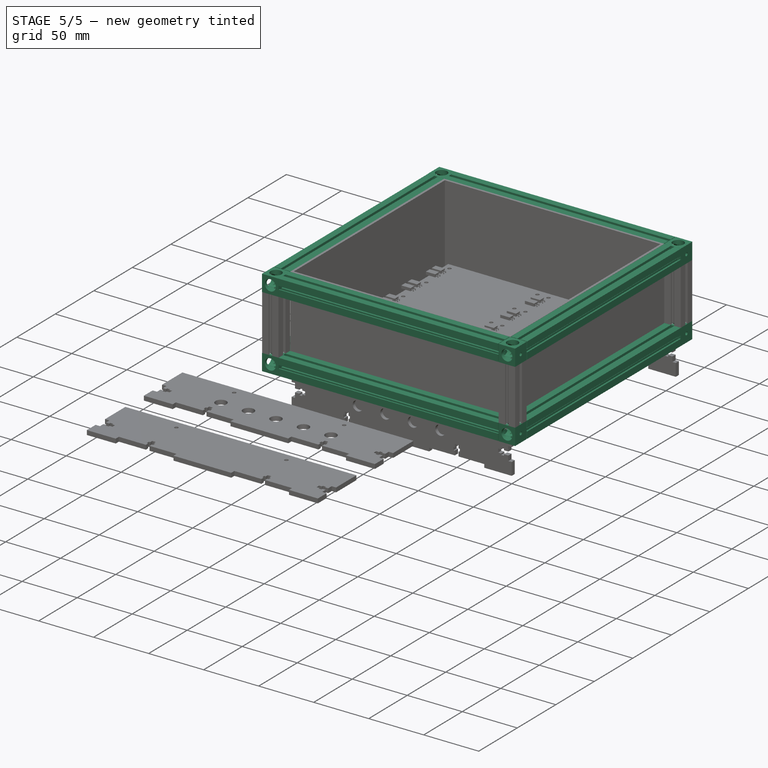
[diagram: stage 5 of 5 — iso view after this stage's code; geometry added in this stage tinted green]
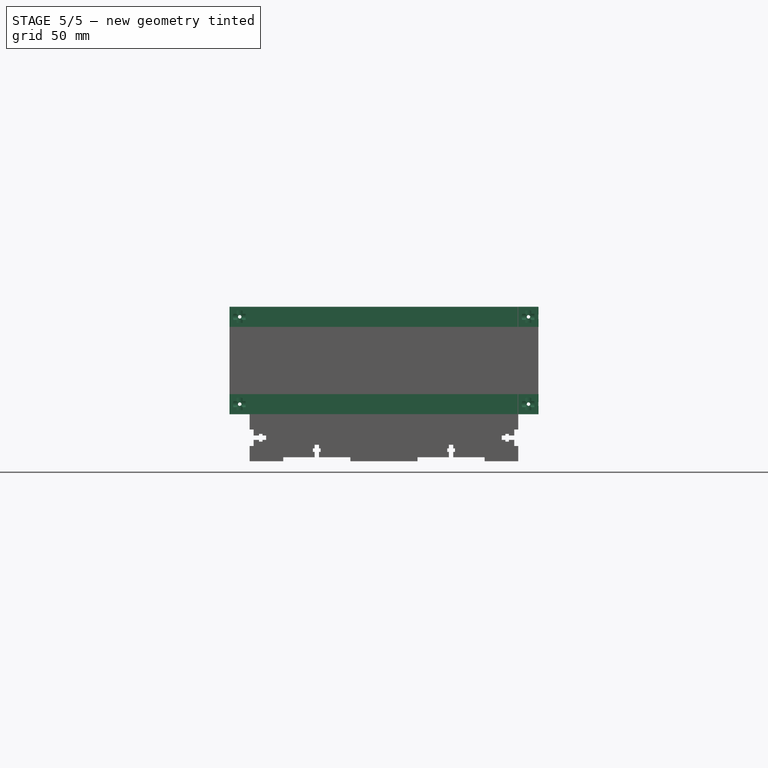
[diagram: stage 5 of 5 — front view after this stage's code; geometry added in this stage tinted green]
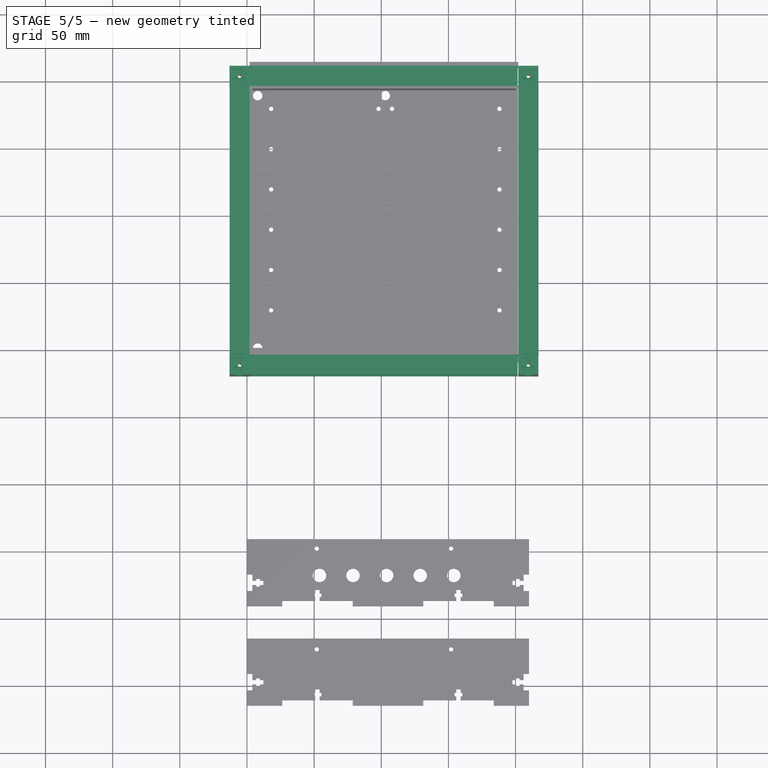
[diagram: stage 5 of 5 — top view after this stage's code; geometry added in this stage tinted green]
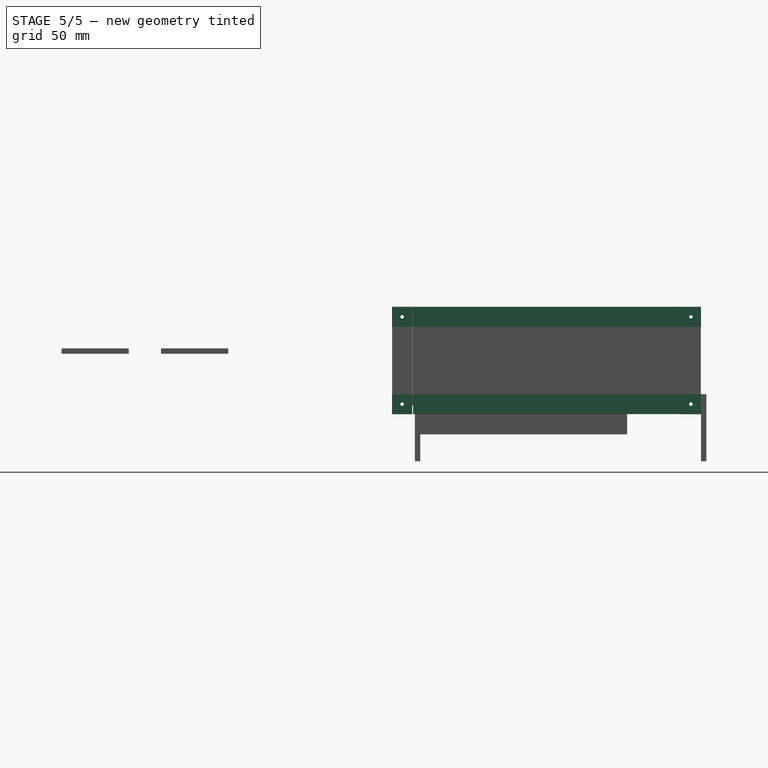
[diagram: stage 5 of 5 — right view after this stage's code; geometry added in this stage tinted green]
FEATURE [Part::Cut] Cut006
  Base = -> Cut005
  Tool = -> Clone001
FEATURE [Part::FeaturePython] Clone003  label="Cylinder004"  # Draft clone (typed FeaturePython)
  AttacherType = Attacher::AttachEngine3D
  Fuse = false
  Objects = -> [Cylinder002]
  Placement = pos=(12,7.5,7.5) rot=(0,1,0;1.5708rad)
  Scale = (1,1,1)
FEATURE [Part::FeaturePython] Clone004  label="Cylinder005"  # Draft clone (typed FeaturePython)
  AttacherType = Attacher::AttachEngine3D
  Fuse = false
  Objects = -> [Clone003]
  Placement = pos=(7.5,15,7.5) rot=(1,0,0;1.5708rad)
  Scale = (1,1,1)
FEATURE [Part::Cut] Cut007
  Base = -> Cut006
  Tool = -> Cylinder002
FEATURE [Part::Cut] Cut008
  Base = -> Cut007
  Tool = -> Clone004
FEATURE [Part::Cut] Cut009  label="Corner"
  Base = -> Cut008
  Placement = pos=(-13,-20,-30) rot=(0.707107,0.707107,0;3.14159rad)
  Tool = -> Clone003
FEATURE [Part::FeaturePython] Array007  label="Corners"  # Draft array (typed FeaturePython)
  AlwaysSyncPlacement = false
  Angle = 360
  ArrayType = 0
  Axis = (0,0,1)
  Base = -> Cut009
  Center = (0,0,0)
  Count = 4
  ExpandArray = false
  Fuse = false
  IntervalAxis = (0,0,0)
  IntervalX = (215,0,0)
  IntervalY = (0,215,0)
  IntervalZ = (0,0,100)
  NumberCircles = 3
  NumberPolar = 5
  NumberX = 2
  NumberY = 2
  NumberZ = 1
  PlacementList = 4 placements: [(-13,-20,-30),(-13,195,-30),(202,-20,-30),(202,195,-30)]
  RadialDistance = 50
  ScaleList = (4) [(1,1,1),(1,1,1),(1,1,1),(1,1,1)]
  Symmetry = 1
  TangentialDistance = 25
FEATURE [Sketcher::SketchObject] Sketch004
  FullyConstrained = true
  MapMode = 5
  Placement = pos=(0,0,0) rot=(1,0,0;1.5708rad)
  Support = -> [XZ_Plane052]
  sketch-geometry (30):
    g0: LineSegment StartX=-7.465 StartY=-7.465 StartZ=0 EndX=-7.465 EndY=-1.515 EndZ=0
    g1: LineSegment StartX=-7.465 StartY=-1.515 StartZ=0 EndX=-6.305 EndY=-1.515 EndZ=0
    g2: LineSegment StartX=-6.305 StartY=-1.515 StartZ=0 EndX=-6.305 EndY=-3.135 EndZ=0
    g3: LineSegment StartX=-6.305 StartY=-3.135 StartZ=0 EndX=-4.005 EndY=-3.135 EndZ=0
    g4: LineSegment StartX=-4.005 StartY=-1.515 StartZ=0 EndX=-2.385 EndY=-1.515 EndZ=0
    g5: LineSegment StartX=-2.385 StartY=-1.515 StartZ=0 EndX=-2.385 EndY=1.515 EndZ=0
    g6: LineSegment StartX=-4.005 StartY=1.515 StartZ=0 EndX=-4.005 EndY=3.135 EndZ=0
    g7: LineSegment StartX=-4.005 StartY=3.135 StartZ=0 EndX=-6.305 EndY=3.135 EndZ=0
    g8: LineSegment StartX=-6.305 StartY=3.135 StartZ=0 EndX=-6.305 EndY=1.515 EndZ=0
    g9: LineSegment StartX=-6.305 StartY=1.515 StartZ=0 EndX=-7.465 EndY=1.515 EndZ=0
    g10: LineSegment StartX=-7.465 StartY=1.515 StartZ=0 EndX=-7.465 EndY=7.465 EndZ=0
    g11: LineSegment StartX=-7.465 StartY=7.465 StartZ=0 EndX=-1.515 EndY=7.465 EndZ=0
    g12: LineSegment StartX=-7.465 StartY=-7.465 StartZ=0 EndX=-1.515 EndY=-7.465 EndZ=0
    g13: LineSegment StartX=-4.005 StartY=-3.135 StartZ=0 EndX=-4.005 EndY=-1.515 EndZ=0
    g14: LineSegment StartX=-2.385 StartY=1.515 StartZ=0 EndX=-4.005 EndY=1.515 EndZ=0
    g15: LineSegment StartX=-1.515 StartY=-7.465 StartZ=0 EndX=-1.515 EndY=-6.305 EndZ=0
    g16: LineSegment StartX=-1.515 StartY=-6.305 StartZ=0 EndX=-3.135 EndY=-6.305 EndZ=0
    g17: LineSegment StartX=-3.135 StartY=-6.305 StartZ=0 EndX=-3.135 EndY=-4.005 EndZ=0
    g18: LineSegment StartX=-3.135 StartY=-4.005 StartZ=0 EndX=-1.515 EndY=-4.005 EndZ=0
    g19: LineSegment StartX=-1.515 StartY=-4.005 StartZ=0 EndX=-1.515 EndY=-2.385 EndZ=0
    g20: LineSegment StartX=-1.515 StartY=-2.385 StartZ=0 EndX=0 EndY=-2.385 EndZ=0
    g21: LineSegment StartX=-1.515 StartY=7.465 StartZ=0 EndX=-1.515 EndY=6.305 EndZ=0
    g22: LineSegment StartX=-1.515 StartY=6.305 StartZ=0 EndX=-3.135 EndY=6.305 EndZ=0
    g23: LineSegment StartX=-3.135 StartY=4.005 StartZ=0 EndX=-1.515 EndY=4.005 EndZ=0
    g24: LineSegment StartX=-1.515 StartY=4.005 StartZ=0 EndX=-1.515 EndY=2.385 EndZ=0
    g25: LineSegment StartX=-1.515 StartY=2.385 StartZ=0 EndX=0 EndY=2.385 EndZ=0
    g26: LineSegment StartX=-3.135 StartY=4.005 StartZ=0 EndX=-3.135 EndY=6.305 EndZ=0
    g27: ArcOfCircle CenterX=0 CenterY=0 CenterZ=0 NormalX=0 NormalY=0 NormalZ=1 AngleXU=0 Radius=1.3 StartAngle=1.5708 EndAngle=4.71239
    g28: LineSegment StartX=1e-16 StartY=2.385 StartZ=0 EndX=1e-16 EndY=1.3 EndZ=0
    g29: LineSegment StartX=0 StartY=-2.385 StartZ=0 EndX=1e-16 EndY=-1.3 EndZ=0
  constraints (88):
    c: Coincident(g1,g0)
    c: Coincident(g2,g1)
    c: Vertical(g2)
    c: Coincident(g3,g2)
    c: Horizontal(g4)
    c: Coincident(g5,g4)
    c: Vertical(g6)
    c: Horizontal(g7)
    c: Coincident(g8,g7)
    c: Vertical(g8)
    c: Coincident(g11,g10)
    c: Horizontal(g11)
    c: Coincident(g12,g0)
    c: Horizontal(g12)
    c: Horizontal(g3)
    c: Vertical(g0)
    c: Horizontal(g1)
    c: Vertical(g5)
    c: Vertical(g10)
    c: Horizontal(g9)
    c: DistanceX(g12,g12) = 5.95
    c: Equal(g12,g0)
    c: Equal(g0,g10)
    c: Equal(g10,g11)
    c: Coincident(g9,g10)
    c: Coincident(g6,g7)
    c: Coincident(g9,g8)
    c: Vertical(g8,g1)
    c: Symmetric(g0,g9,g-1)
    c: DistanceY(g0,g9) = 3.03
    c: Horizontal(g1,g4)
    c: DistanceX(g1,g1) = 1.16
    c: DistanceY(g2,g2) = 1.62
    c: Coincident(g13,g3)
    c: Vertical(g13)
    c: Coincident(g4,g13)
    c: Equal(g4,g13)
    c: Coincident(g14,g5)
    c: Horizontal(g14)
    c: Coincident(g14,g6)
    c: Vertical(g6,g4)
    c: Equal(g6,g8)
    c: Equal(g8,g13)
    c: Coincident(g15,g12)
    c: Vertical(g15)
    c: Coincident(g16,g15)
    c: Horizontal(g16)
    c: Vertical(g17)
    c: Horizontal(g18)
    c: Vertical(g19)
    c: Horizontal(g20)
    c: Coincident(g21,g11)
    c: Vertical(g21)
    c: Horizontal(g23)
    c: Vertical(g24)
    c: Horizontal(g25)
    c: Symmetric(g20,g25,g-1)
    c: Vertical(g25,g-1)
    c: DistanceX(g20,g20) = 1.515
    c: Coincident(g19,g20)
    c: Coincident(g18,g19)
    c: Equal(g25,g20)
    c: Coincident(g24,g25)
    c: Coincident(g23,g24)
    c: Equal(g1,g15)
    c: Equal(g15,g21)
    c: Coincident(g16,g17)
    c: Coincident(g18,g17)
    c: Equal(g16,g2)
    c: Equal(g16,g18)
    c: Equal(g23,g18)
    c: Equal(g22,g23)
    c: Coincident(g22,g21)
    c: Horizontal(g22)
    c: Coincident(g26,g23)
    c: DistanceX(g7,g7) = 2.3
    c: Equal(g17,g3)
    c: Equal(g19,g13)
    c: Equal(g24,g6)
    c: Coincident(g26,g22)
    c: Coincident(g27,g-1)
    c: Vertical(g27,g27)
    c: Radius(g27) = 1.3
    c: Coincident(g28,g25)
    c: Coincident(g28,g27)
    c: Vertical(g28)
    c: Coincident(g29,g20)
    c: Coincident(g29,g27)
FEATURE [PartDesign::Pad] Pad001
  Direction = (0,-1,-2e-16)
  Length = 200
  Length2 = 10
  Placement = pos=(0,0,0) rot=(1,0,0;1.5708rad)
  Profile = -> Sketch004
  ReferenceAxis = -> Sketch004 [N_Axis]
  Type = 0
FEATURE [PartDesign::Mirrored] Mirrored001
  BaseFeature = -> Pad001
  MirrorPlane = -> Sketch004 [V_Axis]
  Originals = -> [Pad001]
  Placement = pos=(-3.88759,-0.406435,0) rot=(0.999924,0.008726,0.008726;1.57087rad)
FEATURE [PartDesign::Body] Body003  label="200mm_profile"
  Group = -> [Sketch004,Pad001,Mirrored001]
  Origin = -> Origin052
  Placement = pos=(-1.5,196,-37.5) rot=(0,0,-1;0.017453rad)
  Tip = -> Mirrored001
FEATURE [Part::FeaturePython] Array005  label="200mm_profile_sides"  # Draft array (typed FeaturePython)
  AlwaysSyncPlacement = false
  Angle = 360
  ArrayType = 0
  Axis = (0,0,1)
  Base = -> Body003
  Center = (0,0,0)
  Count = 2
  ExpandArray = false
  Fuse = false
  IntervalAxis = (0,0,0)
  IntervalX = (215,0,0)
  IntervalY = (0,100,0)
  IntervalZ = (0,0,100)
  NumberCircles = 3
  NumberPolar = 5
  NumberX = 2
  NumberY = 1
  NumberZ = 1
  PlacementList = 2 placements: [(-1.5,196,-37.5),(213.5,196,-37.5)]
  RadialDistance = 50
  ScaleList = (2) [(1,1,1),(1,1,1)]
  Symmetry = 1
  TangentialDistance = 25
FEATURE [Sketcher::SketchObject] Sketch005
  FullyConstrained = true
  MapMode = 5
  Placement = pos=(0,0,0) rot=(1,0,0;1.5708rad)
  Support = -> [XZ_Plane053]
  sketch-geometry (30):
    g0: LineSegment StartX=-7.465 StartY=-7.465 StartZ=0 EndX=-7.465 EndY=-1.515 EndZ=0
    g1: LineSegment StartX=-7.465 StartY=-1.515 StartZ=0 EndX=-6.305 EndY=-1.515 EndZ=0
    g2: LineSegment StartX=-6.305 StartY=-1.515 StartZ=0 EndX=-6.305 EndY=-3.135 EndZ=0
    g3: LineSegment StartX=-6.305 StartY=-3.135 StartZ=0 EndX=-4.005 EndY=-3.135 EndZ=0
    g4: LineSegment StartX=-4.005 StartY=-1.515 StartZ=0 EndX=-2.385 EndY=-1.515 EndZ=0
    g5: LineSegment StartX=-2.385 StartY=-1.515 StartZ=0 EndX=-2.385 EndY=1.515 EndZ=0
    g6: LineSegment StartX=-4.005 StartY=1.515 StartZ=0 EndX=-4.005 EndY=3.135 EndZ=0
    g7: LineSegment StartX=-4.005 StartY=3.135 StartZ=0 EndX=-6.305 EndY=3.135 EndZ=0
    g8: LineSegment StartX=-6.305 StartY=3.135 StartZ=0 EndX=-6.305 EndY=1.515 EndZ=0
    g9: LineSegment StartX=-6.305 StartY=1.515 StartZ=0 EndX=-7.465 EndY=1.515 EndZ=0
    g10: LineSegment StartX=-7.465 StartY=1.515 StartZ=0 EndX=-7.465 EndY=7.465 EndZ=0
    g11: LineSegment StartX=-7.465 StartY=7.465 StartZ=0 EndX=-1.515 EndY=7.465 EndZ=0
    g12: LineSegment StartX=-7.465 StartY=-7.465 StartZ=0 EndX=-1.515 EndY=-7.465 EndZ=0
    g13: LineSegment StartX=-4.005 StartY=-3.135 StartZ=0 EndX=-4.005 EndY=-1.515 EndZ=0
    g14: LineSegment StartX=-2.385 StartY=1.515 StartZ=0 EndX=-4.005 EndY=1.515 EndZ=0
    g15: LineSegment StartX=-1.515 StartY=-7.465 StartZ=0 EndX=-1.515 EndY=-6.305 EndZ=0
    g16: LineSegment StartX=-1.515 StartY=-6.305 StartZ=0 EndX=-3.135 EndY=-6.305 EndZ=0
    g17: LineSegment StartX=-3.135 StartY=-6.305 StartZ=0 EndX=-3.135 EndY=-4.005 EndZ=0
    g18: LineSegment StartX=-3.135 StartY=-4.005 StartZ=0 EndX=-1.515 EndY=-4.005 EndZ=0
    g19: LineSegment StartX=-1.515 StartY=-4.005 StartZ=0 EndX=-1.515 EndY=-2.385 EndZ=0
    g20: LineSegment StartX=-1.515 StartY=-2.385 StartZ=0 EndX=0 EndY=-2.385 EndZ=0
    g21: LineSegment StartX=-1.515 StartY=7.465 StartZ=0 EndX=-1.515 EndY=6.305 EndZ=0
    g22: LineSegment StartX=-1.515 StartY=6.305 StartZ=0 EndX=-3.135 EndY=6.305 EndZ=0
    g23: LineSegment StartX=-3.135 StartY=4.005 StartZ=0 EndX=-1.515 EndY=4.005 EndZ=0
    g24: LineSegment StartX=-1.515 StartY=4.005 StartZ=0 EndX=-1.515 EndY=2.385 EndZ=0
    g25: LineSegment StartX=-1.515 StartY=2.385 StartZ=0 EndX=0 EndY=2.385 EndZ=0
    g26: LineSegment StartX=-3.135 StartY=4.005 StartZ=0 EndX=-3.135 EndY=6.305 EndZ=0
    g27: ArcOfCircle CenterX=0 CenterY=0 CenterZ=0 NormalX=0 NormalY=0 NormalZ=1 AngleXU=0 Radius=1.3 StartAngle=1.5708 EndAngle=4.71239
    g28: LineSegment StartX=1e-16 StartY=2.385 StartZ=0 EndX=1e-16 EndY=1.3 EndZ=0
    g29: LineSegment StartX=0 StartY=-2.385 StartZ=0 EndX=1e-16 EndY=-1.3 EndZ=0
  constraints (88):
    c: Coincident(g1,g0)
    c: Coincident(g2,g1)
    c: Vertical(g2)
    c: Coincident(g3,g2)
    c: Horizontal(g4)
    c: Coincident(g5,g4)
    c: Vertical(g6)
    c: Horizontal(g7)
    c: Coincident(g8,g7)
    c: Vertical(g8)
    c: Coincident(g11,g10)
    c: Horizontal(g11)
    c: Coincident(g12,g0)
    c: Horizontal(g12)
    c: Horizontal(g3)
    c: Vertical(g0)
    c: Horizontal(g1)
    c: Vertical(g5)
    c: Vertical(g10)
    c: Horizontal(g9)
    c: DistanceX(g12,g12) = 5.95
    c: Equal(g12,g0)
    c: Equal(g0,g10)
    c: Equal(g10,g11)
    c: Coincident(g9,g10)
    c: Coincident(g6,g7)
    c: Coincident(g9,g8)
    c: Vertical(g8,g1)
    c: Symmetric(g0,g9,g-1)
    c: DistanceY(g0,g9) = 3.03
    c: Horizontal(g1,g4)
    c: DistanceX(g1,g1) = 1.16
    c: DistanceY(g2,g2) = 1.62
    c: Coincident(g13,g3)
    c: Vertical(g13)
    c: Coincident(g4,g13)
    c: Equal(g4,g13)
    c: Coincident(g14,g5)
    c: Horizontal(g14)
    c: Coincident(g14,g6)
    c: Vertical(g6,g4)
    c: Equal(g6,g8)
    c: Equal(g8,g13)
    c: Coincident(g15,g12)
    c: Vertical(g15)
    c: Coincident(g16,g15)
    c: Horizontal(g16)
    c: Vertical(g17)
    c: Horizontal(g18)
    c: Vertical(g19)
    c: Horizontal(g20)
    c: Coincident(g21,g11)
    c: Vertical(g21)
    c: Horizontal(g23)
    c: Vertical(g24)
    c: Horizontal(g25)
    c: Symmetric(g20,g25,g-1)
    c: Vertical(g25,g-1)
    c: DistanceX(g20,g20) = 1.515
    c: Coincident(g19,g20)
    c: Coincident(g18,g19)
    c: Equal(g25,g20)
    c: Coincident(g24,g25)
    c: Coincident(g23,g24)
    c: Equal(g1,g15)
    c: Equal(g15,g21)
    c: Coincident(g16,g17)
    c: Coincident(g18,g17)
    c: Equal(g16,g2)
    c: Equal(g16,g18)
    c: Equal(g23,g18)
    c: Equal(g22,g23)
    c: Coincident(g22,g21)
    c: Horizontal(g22)
    c: Coincident(g26,g23)
    c: DistanceX(g7,g7) = 2.3
    c: Equal(g17,g3)
    c: Equal(g19,g13)
    c: Equal(g24,g6)
    c: Coincident(g26,g22)
    c: Coincident(g27,g-1)
    c: Vertical(g27,g27)
    c: Radius(g27) = 1.3
    c: Coincident(g28,g25)
    c: Coincident(g28,g27)
    c: Vertical(g28)
    c: Coincident(g29,g20)
    c: Coincident(g29,g27)
FEATURE [PartDesign::Pad] Pad002
  Direction = (0,-1,-2e-16)
  Length = 200
  Length2 = 10
  Placement = pos=(0,0,0) rot=(1,0,0;1.5708rad)
  Profile = -> Sketch005
  ReferenceAxis = -> Sketch005 [N_Axis]
  Type = 0
FEATURE [PartDesign::Mirrored] Mirrored002
  BaseFeature = -> Pad002
  MirrorPlane = -> Sketch005 [V_Axis]
  Originals = -> [Pad002]
  Placement = pos=(0,0,0) rot=(1,0,0;1.5708rad)
FEATURE [PartDesign::Body] Body004  label="15mm_profile"
  Group = -> [Sketch005,Pad002,Mirrored002]
  Origin = -> Origin053
  Placement = pos=(7.5,-19.5,-33.5) rot=(0.57735,-0.57735,-0.57735;4.18879rad)
  Tip = -> Mirrored002
FEATURE [Part::FeaturePython] Array006  label="200mm_profile_side"  # Draft array (typed FeaturePython)
  AlwaysSyncPlacement = false
  Angle = 360
  ArrayType = 0
  Axis = (0,0,1)
  Base = -> Body004
  Center = (0,0,0)
  Count = 2
  ExpandArray = false
  Fuse = false
  IntervalAxis = (0,0,0)
  IntervalX = (100,0,0)
  IntervalY = (0,215,0)
  IntervalZ = (0,0,100)
  NumberCircles = 3
  NumberPolar = 5
  NumberX = 1
  NumberY = 2
  NumberZ = 1
  Placement = pos=(-6,7,-4) rot=(0,0,1;0rad)
  PlacementList = 2 placements: [(7.5,-19.5,-33.5),(7.5,195.5,-33.5)]
  RadialDistance = 50
  ScaleList = (2) [(1,1,1),(1,1,1)]
  Symmetry = 1
  TangentialDistance = 25
FEATURE [Part::FeaturePython] Array  label="200mm_profile001"  # Draft array (typed FeaturePython)
  AlwaysSyncPlacement = false
  Angle = 360
  ArrayType = 0
  Axis = (0,0,1)
  Base = -> Array005
  Center = (0,0,0)
  Count = 2
  ExpandArray = false
  Fuse = false
  IntervalAxis = (0,0,0)
  IntervalX = (100,0,0)
  IntervalY = (0,100,0)
  IntervalZ = (0,0,65)
  NumberCircles = 3
  NumberPolar = 5
  NumberX = 1
  NumberY = 1
  NumberZ = 2
  PlacementList = 2 placements: [(0,0,0),(0,0,65)]
  RadialDistance = 50
  ScaleList = (2) [(1,1,1),(1,1,1)]
  Symmetry = 1
  TangentialDistance = 25
FEATURE [Part::FeaturePython] Array008  label="200mm_profiles"  # Draft array (typed FeaturePython)
  AlwaysSyncPlacement = false
  Angle = 360
  ArrayType = 0
  Axis = (0,0,1)
  Base = -> Array006
  Center = (0,0,0)
  Count = 2
  ExpandArray = false
  Fuse = false
  IntervalAxis = (0,0,0)
  IntervalX = (100,0,0)
  IntervalY = (0,100,0)
  IntervalZ = (0,0,65)
  NumberCircles = 3
  NumberPolar = 5
  NumberX = 1
  NumberY = 1
  NumberZ = 2
  PlacementList = 2 placements: [(-6,7,-4),(-6,7,61)]
  RadialDistance = 50
  ScaleList = (2) [(1,1,1),(1,1,1)]
  Symmetry = 1
  TangentialDistance = 25
FEATURE [Part::FeaturePython] Array009  label="Cubes"  # Draft array (typed FeaturePython)
  AlwaysSyncPlacement = false
  Angle = 360
  ArrayType = 0
  Axis = (0,0,1)
  Base = -> Array007
  Center = (0,0,0)
  Count = 2
  ExpandArray = false
  Fuse = false
  IntervalAxis = (0,0,0)
  IntervalX = (100,0,0)
  IntervalY = (0,100,0)
  IntervalZ = (0,0,65)
  NumberCircles = 3
  NumberPolar = 5
  NumberX = 1
  NumberY = 1
  NumberZ = 2
  PlacementList = 2 placements: [(0,0,0),(0,0,65)]
  RadialDistance = 50
  ScaleList = (2) [(1,1,1),(1,1,1)]
  Symmetry = 1
  TangentialDistance = 25
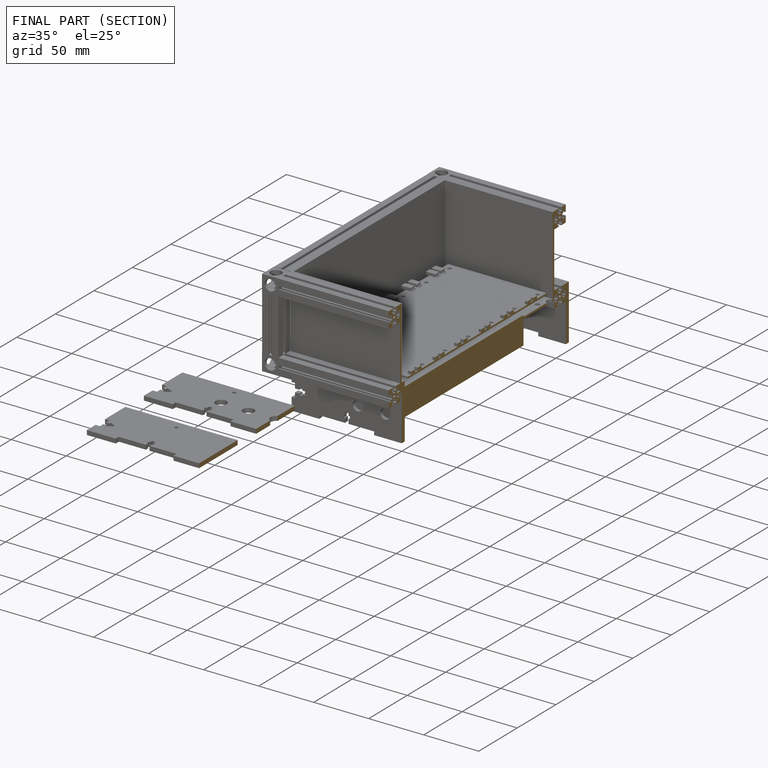
[diagram: finished part — half-section view (interior)]
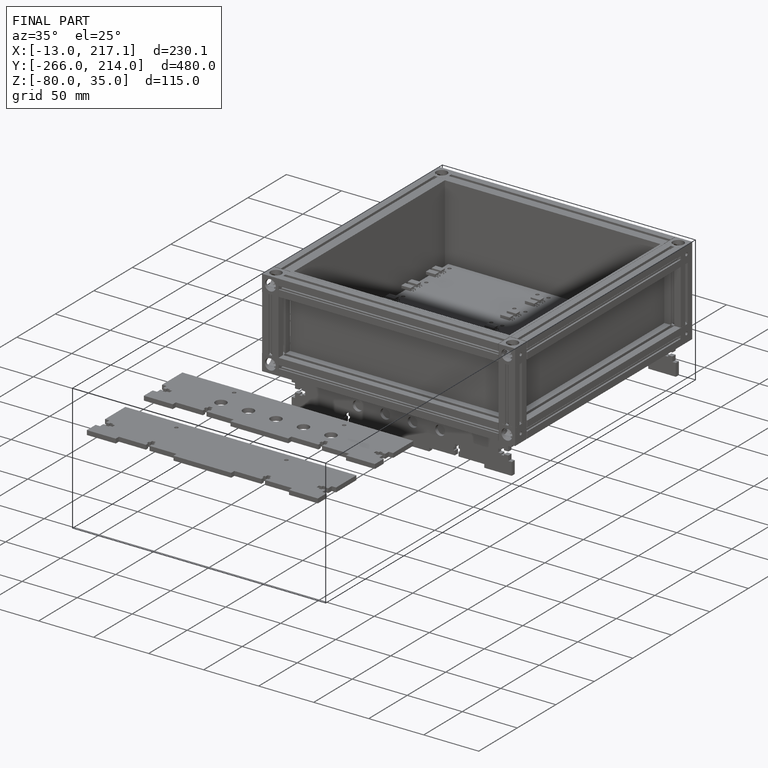
[diagram: finished part — iso view with bounding-box wireframe]
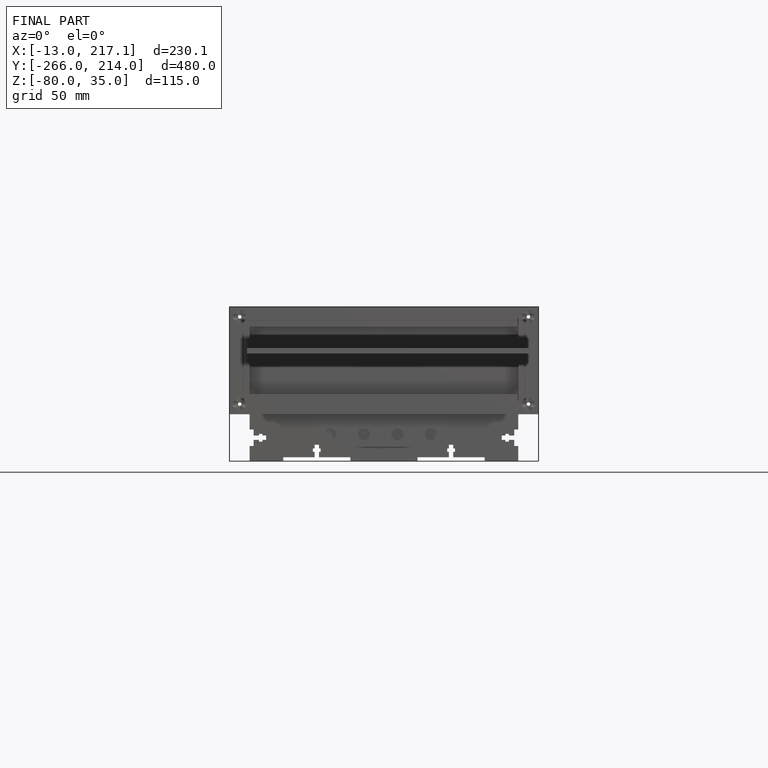
[diagram: finished part — front view with bounding-box wireframe]
